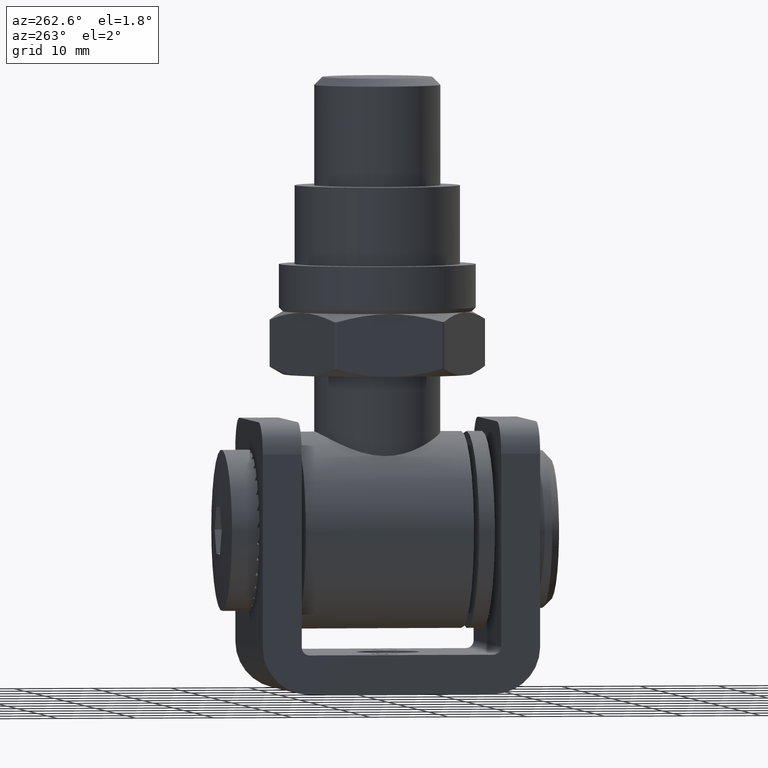
[diagram: clean part render]
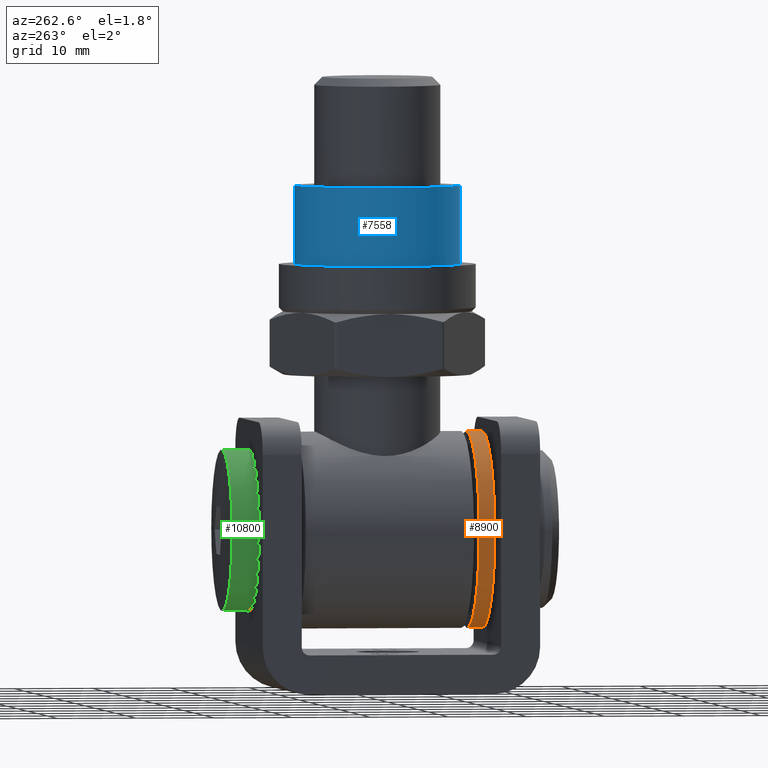
[diagram: same view with three faces highlighted in distinct colors, each labeled with its STEP entity id]
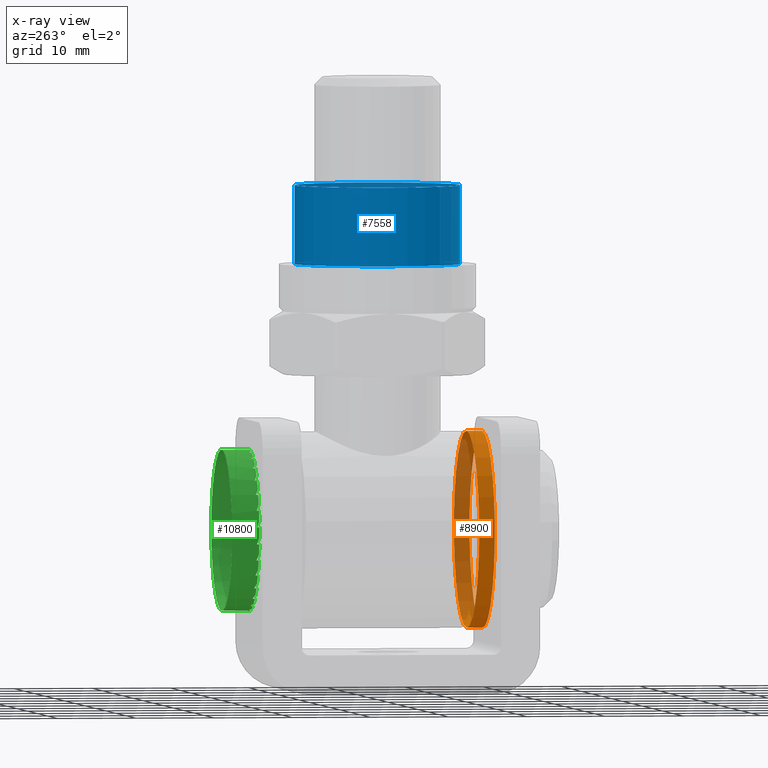
[diagram: x-ray of the same camera — body ghosted, the three highlighted faces saturated]
A machine part, auxiliary view with three faces highlighted in distinct colors.
The next image is the same camera in x-ray (body ghosted, the three faces saturated) — at least one of them is partly hidden behind the body in this view.
Their STEP definitions:

[orange] entity #8900 — the highlighted cylindrical surface (bore or boss wall) has radius 12.5 mm, axis along (-0, -1, -0).
#1687 = CARTESIAN_POINT ( 'NONE',  ( 0.000000000000000000, 1.000000000000000888, 0.000000000000000000 ) ) ;
#3743 = CARTESIAN_POINT ( 'NONE',  ( 0.000000000000000000, 1.000000000000000888, 12.50000000000000000 ) ) ;
#4303 = CYLINDRICAL_SURFACE ( 'NONE', #16565, 12.50000000000000000 ) ;
#5380 = CARTESIAN_POINT ( 'NONE',  ( 0.000000000000000000, -1.000000000000000888, 12.50000000000000000 ) ) ;
#5587 = DIRECTION ( 'NONE',  ( 0.000000000000000000, 1.000000000000000000, 0.000000000000000000 ) ) ;
#6680 = DIRECTION ( 'NONE',  ( 0.000000000000000000, 0.000000000000000000, -1.000000000000000000 ) ) ;
#6732 = CARTESIAN_POINT ( 'NONE',  ( 0.000000000000000000, 1.000000000000000888, 0.000000000000000000 ) ) ;
#6971 = AXIS2_PLACEMENT_3D ( 'NONE', #15817, #5587, #7127 ) ;
#7039 = EDGE_LOOP ( 'NONE', ( #18089 ) ) ;
#7127 = DIRECTION ( 'NONE',  ( 0.000000000000000000, 0.000000000000000000, 1.000000000000000000 ) ) ;
#7625 = ORIENTED_EDGE ( 'NONE', *, *, #12407, .F. ) ;
#8900 = ADVANCED_FACE ( 'NONE', ( #14132, #15470 ), #4303, .T. ) ;
#10935 = AXIS2_PLACEMENT_3D ( 'NONE', #6732, #13516, #15143 ) ;
#12407 = EDGE_CURVE ( 'NONE', #20949, #20949, #15343, .T. ) ;
#12630 = EDGE_CURVE ( 'NONE', #17788, #17788, #20374, .T. ) ;
#13516 = DIRECTION ( 'NONE',  ( 0.000000000000000000, 1.000000000000000000, 0.000000000000000000 ) ) ;
#14132 = FACE_OUTER_BOUND ( 'NONE', #16237, .T. ) ;
#15143 = DIRECTION ( 'NONE',  ( 0.000000000000000000, 0.000000000000000000, 1.000000000000000000 ) ) ;
#15343 = CIRCLE ( 'NONE', #10935, 12.50000000000000000 ) ;
#15470 = FACE_OUTER_BOUND ( 'NONE', #7039, .T. ) ;
#15817 = CARTESIAN_POINT ( 'NONE',  ( 0.000000000000000000, -1.000000000000000888, 0.000000000000000000 ) ) ;
#16237 = EDGE_LOOP ( 'NONE', ( #7625 ) ) ;
#16565 = AXIS2_PLACEMENT_3D ( 'NONE', #1687, #16893, #6680 ) ;
#16893 = DIRECTION ( 'NONE',  ( -0.000000000000000000, -1.000000000000000000, -0.000000000000000000 ) ) ;
#17788 = VERTEX_POINT ( 'NONE', #5380 ) ;
#18089 = ORIENTED_EDGE ( 'NONE', *, *, #12630, .T. ) ;
#20374 = CIRCLE ( 'NONE', #6971, 12.50000000000000000 ) ;
#20949 = VERTEX_POINT ( 'NONE', #3743 ) ;

[blue] entity #7558 — the highlighted cylindrical surface (bore or boss wall) has radius 10.5 mm, axis along (0, 0, 1).
#933 = EDGE_LOOP ( 'NONE', ( #7900 ) ) ;
#4815 = EDGE_CURVE ( 'NONE', #20162, #20162, #16387, .T. ) ;
#4912 = AXIS2_PLACEMENT_3D ( 'NONE', #8439, #20222, #15504 ) ;
#6128 = EDGE_LOOP ( 'NONE', ( #16639 ) ) ;
#7006 = AXIS2_PLACEMENT_3D ( 'NONE', #12778, #19242, #10637 ) ;
#7140 = CARTESIAN_POINT ( 'NONE',  ( 10.50000000000000000, 0.000000000000000000, 8.000000000000007105 ) ) ;
#7558 = ADVANCED_FACE ( 'NONE', ( #16016, #18933 ), #11470, .T. ) ;
#7900 = ORIENTED_EDGE ( 'NONE', *, *, #4815, .T. ) ;
#8439 = CARTESIAN_POINT ( 'NONE',  ( 0.000000000000000000, 0.000000000000000000, 8.000000000000007105 ) ) ;
#8627 = DIRECTION ( 'NONE',  ( -0.000000000000000000, -0.000000000000000000, 1.000000000000000000 ) ) ;
#10117 = CARTESIAN_POINT ( 'NONE',  ( 0.000000000000000000, 0.000000000000000000, -2.000000000000001776 ) ) ;
#10637 = DIRECTION ( 'NONE',  ( 1.000000000000000000, 0.000000000000000000, 0.000000000000000000 ) ) ;
#11470 = CYLINDRICAL_SURFACE ( 'NONE', #7006, 10.50000000000000000 ) ;
#12181 = VERTEX_POINT ( 'NONE', #7140 ) ;
#12778 = CARTESIAN_POINT ( 'NONE',  ( 0.000000000000000000, 0.000000000000000000, 8.000000000000007105 ) ) ;
#15356 = CIRCLE ( 'NONE', #4912, 10.50000000000000000 ) ;
#15504 = DIRECTION ( 'NONE',  ( 1.000000000000000000, 0.000000000000000000, 0.000000000000000000 ) ) ;
#16016 = FACE_OUTER_BOUND ( 'NONE', #6128, .T. ) ;
#16387 = CIRCLE ( 'NONE', #20202, 10.50000000000000000 ) ;
#16639 = ORIENTED_EDGE ( 'NONE', *, *, #17884, .F. ) ;
#17884 = EDGE_CURVE ( 'NONE', #12181, #12181, #15356, .T. ) ;
#18728 = CARTESIAN_POINT ( 'NONE',  ( 10.50000000000000000, 0.000000000000000000, -2.000000000000001776 ) ) ;
#18933 = FACE_OUTER_BOUND ( 'NONE', #933, .T. ) ;
#19242 = DIRECTION ( 'NONE',  ( -0.000000000000000000, -0.000000000000000000, 1.000000000000000000 ) ) ;
#20162 = VERTEX_POINT ( 'NONE', #18728 ) ;
#20202 = AXIS2_PLACEMENT_3D ( 'NONE', #10117, #8627, #21951 ) ;
#20222 = DIRECTION ( 'NONE',  ( -0.000000000000000000, -0.000000000000000000, 1.000000000000000000 ) ) ;
#21951 = DIRECTION ( 'NONE',  ( 1.000000000000000000, 0.000000000000000000, 0.000000000000000000 ) ) ;

[green] entity #10800 — the highlighted cylindrical surface (bore or boss wall) has radius 10.25 mm, axis along (-0, -1, -0).
#34 = VECTOR ( 'NONE', #15552, 1000.000000000000000 ) ;
#44 = VERTEX_POINT ( 'NONE', #7549 ) ;
#62 = EDGE_CURVE ( 'NONE', #7883, #11686, #8650, .T. ) ;
#64 = CARTESIAN_POINT ( 'NONE',  ( 1.878014372383247721E-15, 15.00000000000000000, 0.000000000000000000 ) ) ;
#113 = ORIENTED_EDGE ( 'NONE', *, *, #7371, .F. ) ;
#146 = DIRECTION ( 'NONE',  ( -1.252009581588831962E-16, -1.000000000000000000, -0.000000000000000000 ) ) ;
#237 = VERTEX_POINT ( 'NONE', #16247 ) ;
#239 = CARTESIAN_POINT ( 'NONE',  ( -2.520730527499571494, 15.00000000000000000, -9.935210999658318443 ) ) ;
#245 = CARTESIAN_POINT ( 'NONE',  ( 6.343816293589125799, 15.00000000000000000, 8.050993406604744607 ) ) ;
#270 = CARTESIAN_POINT ( 'NONE',  ( 4.531293035140212311, 15.00000000000000000, -9.194013456031584042 ) ) ;
#275 = DIRECTION ( 'NONE',  ( -1.252009581588831962E-16, -1.000000000000000000, -0.000000000000000000 ) ) ;
#280 = EDGE_CURVE ( 'NONE', #5739, #17250, #478, .T. ) ;
#338 = CIRCLE ( 'NONE', #3754, 10.24999999999999289 ) ;
#395 = CARTESIAN_POINT ( 'NONE',  ( 9.617296785912552437, 0.000000000000000000, 3.545434039955615457 ) ) ;
#402 = DIRECTION ( 'NONE',  ( 1.000000000000000000, -1.692413147294447202E-16, 0.000000000000000000 ) ) ;
#411 = EDGE_CURVE ( 'NONE', #7354, #7920, #12963, .T. ) ;
#422 = CIRCLE ( 'NONE', #16511, 10.24999999999999289 ) ;
#478 =( BOUNDED_CURVE ( )  B_SPLINE_CURVE ( 3, ( #21655, #21737, #7982, #19860 ),
 .UNSPECIFIED., .F., .T. ) 
 B_SPLINE_CURVE_WITH_KNOTS ( ( 4, 4 ),
 ( 1.531762024696450064, 1.609830628893343496 ),
 .UNSPECIFIED. ) 
 CURVE ( )  GEOMETRIC_REPRESENTATION_ITEM ( )  RATIONAL_B_SPLINE_CURVE ( ( 1.000000000000000000, 0.9994921722385874396, 0.9994921722385874396, 1.000000000000000000 ) ) 
 REPRESENTATION_ITEM ( '' )  );
#486 = CARTESIAN_POINT ( 'NONE',  ( 7.879084339000053561, 15.00000000000000000, 6.556106312356745569 ) ) ;
#489 = CARTESIAN_POINT ( 'NONE',  ( 1.738212446912596132, 0.000000000000000000, 10.10154035231251690 ) ) ;
#505 = CARTESIAN_POINT ( 'NONE',  ( 10.22789573322941870, 0.000000000000000000, -0.6727918475928512665 ) ) ;
#550 = CARTESIAN_POINT ( 'NONE',  ( 10.21038331219361339, 15.09997459571092548, 0.9390186412609659028 ) ) ;
#552 = DIRECTION ( 'NONE',  ( -1.252009581588831962E-16, -1.000000000000000000, -0.000000000000000000 ) ) ;
#662 = ORIENTED_EDGE ( 'NONE', *, *, #21092, .F. ) ;
#690 = CARTESIAN_POINT ( 'NONE',  ( 1.878014372383247721E-15, 15.00000000000000000, 0.000000000000000000 ) ) ;
#702 = LINE ( 'NONE', #16424, #5560 ) ;
#728 = CIRCLE ( 'NONE', #17994, 10.24999999999999289 ) ;
#748 = CARTESIAN_POINT ( 'NONE',  ( 10.14427296261531630, 0.000000000000000000, 1.468409363887265728 ) ) ;
#756 =( BOUNDED_CURVE ( )  B_SPLINE_CURVE ( 3, ( #18975, #7610, #9364, #8788 ),
 .UNSPECIFIED., .F., .T. ) 
 B_SPLINE_CURVE_WITH_KNOTS ( ( 4, 4 ),
 ( 1.531762024696450952, 1.609830628893342830 ),
 .UNSPECIFIED. ) 
 CURVE ( )  GEOMETRIC_REPRESENTATION_ITEM ( )  RATIONAL_B_SPLINE_CURVE ( ( 1.000000000000000000, 0.9994921722385874396, 0.9994921722385874396, 1.000000000000000000 ) ) 
 REPRESENTATION_ITEM ( '' )  );
#762 = ORIENTED_EDGE ( 'NONE', *, *, #10574, .F. ) ;
#809 = CARTESIAN_POINT ( 'NONE',  ( 0.1334010781042021532, 15.09997459571092371, 10.25260393963006855 ) ) ;
#830 = ORIENTED_EDGE ( 'NONE', *, *, #13032, .F. ) ;
#863 = EDGE_CURVE ( 'NONE', #15506, #5656, #1244, .T. ) ;
#872 =( BOUNDED_CURVE ( )  B_SPLINE_CURVE ( 3, ( #18173, #18255, #7984, #13025 ),
 .UNSPECIFIED., .F., .T. ) 
 B_SPLINE_CURVE_WITH_KNOTS ( ( 4, 4 ),
 ( 1.531762024696450064, 1.609830628893342608 ),
 .UNSPECIFIED. ) 
 CURVE ( )  GEOMETRIC_REPRESENTATION_ITEM ( )  RATIONAL_B_SPLINE_CURVE ( ( 1.000000000000000000, 0.9994921722385874396, 0.9994921722385874396, 1.000000000000000000 ) ) 
 REPRESENTATION_ITEM ( '' )  );
#906 = CARTESIAN_POINT ( 'NONE',  ( -8.669998590755245260, 15.30000000000000071, -5.467506235597888953 ) ) ;
#907 = CARTESIAN_POINT ( 'NONE',  ( -7.879084339000008264, 15.00000000000000000, -6.556106312356802412 ) ) ;
#928 = ORIENTED_EDGE ( 'NONE', *, *, #7263, .F. ) ;
#930 = CARTESIAN_POINT ( 'NONE',  ( 2.316217725939337712E-15, 18.49999999999998934, 0.000000000000000000 ) ) ;
#982 = CIRCLE ( 'NONE', #3592, 10.24999999999999289 ) ;
#993 = CARTESIAN_POINT ( 'NONE',  ( 9.069998590755188772, 15.29999999999999361, -4.774685912570473256 ) ) ;
#1010 = EDGE_CURVE ( 'NONE', #5713, #9310, #20841, .T. ) ;
#1045 = EDGE_CURVE ( 'NONE', #16010, #7354, #422, .T. ) ;
#1072 = DIRECTION ( 'NONE',  ( -1.252009581588831962E-16, -1.000000000000000000, -0.000000000000000000 ) ) ;
#1078 = EDGE_CURVE ( 'NONE', #9366, #7070, #3328, .T. ) ;
#1093 = CARTESIAN_POINT ( 'NONE',  ( 1.878014372383247721E-15, 15.00000000000000000, 0.000000000000000000 ) ) ;
#1094 = VECTOR ( 'NONE', #20483, 1000.000000000000000 ) ;
#1162 = VERTEX_POINT ( 'NONE', #20192 ) ;
#1237 = CARTESIAN_POINT ( 'NONE',  ( 4.531293035140397052, 15.00000000000000000, 9.194013456031488118 ) ) ;
#1244 = CIRCLE ( 'NONE', #8515, 10.24999999999999289 ) ;
#1250 = CARTESIAN_POINT ( 'NONE',  ( 9.792028985980648415, 15.20002540428906812, -3.041356889329535740 ) ) ;
#1257 = ORIENTED_EDGE ( 'NONE', *, *, #10934, .F. ) ;
#1279 = CARTESIAN_POINT ( 'NONE',  ( -7.879084338999962966, 15.30000000000000071, 6.556106312356861920 ) ) ;
#1287 = CARTESIAN_POINT ( 'NONE',  ( 10.22789573322943113, 15.00000000000000000, 0.6727918475926445430 ) ) ;
#1293 =( BOUNDED_CURVE ( )  B_SPLINE_CURVE ( 3, ( #19546, #6336, #21493, #6182 ),
 .UNSPECIFIED., .F., .T. ) 
 B_SPLINE_CURVE_WITH_KNOTS ( ( 4, 4 ),
 ( 1.531762024696450952, 1.609830628893342608 ),
 .UNSPECIFIED. ) 
 CURVE ( )  GEOMETRIC_REPRESENTATION_ITEM ( )  RATIONAL_B_SPLINE_CURVE ( ( 1.000000000000000000, 0.9994921722385874396, 0.9994921722385874396, 1.000000000000000000 ) ) 
 REPRESENTATION_ITEM ( '' )  );
#1372 = CARTESIAN_POINT ( 'NONE',  ( 0.4000000000000000222, 15.29999999999999361, -10.24219214816827872 ) ) ;
#1395 = EDGE_CURVE ( 'NONE', #9222, #19199, #20829, .T. ) ;
#1461 = VERTEX_POINT ( 'NONE', #9565 ) ;
#1566 = DIRECTION ( 'NONE',  ( -1.252009581588831962E-16, -1.000000000000000000, -0.000000000000000000 ) ) ;
#1569 = EDGE_CURVE ( 'NONE', #5204, #18991, #20857, .T. ) ;
#1628 = VERTEX_POINT ( 'NONE', #6957 ) ;
#1642 = CARTESIAN_POINT ( 'NONE',  ( -6.343816293589016553, 15.29999999999999361, 8.050993406604835201 ) ) ;
#1651 = VERTEX_POINT ( 'NONE', #7037 ) ;
#1759 = CARTESIAN_POINT ( 'NONE',  ( -6.343816293589064514, 15.00000000000000000, -8.050993406604781910 ) ) ;
#1783 = VECTOR ( 'NONE', #7973, 1000.000000000000000 ) ;
#1798 = EDGE_CURVE ( 'NONE', #20088, #13043, #21121, .T. ) ;
#1861 = LINE ( 'NONE', #15727, #18301 ) ;
#1925 = EDGE_CURVE ( 'NONE', #10980, #8938, #13147, .T. ) ;
#1963 = CARTESIAN_POINT ( 'NONE',  ( 6.134253132564571054, 15.09997459571092193, 8.216119637406649190 ) ) ;
#2006 = CARTESIAN_POINT ( 'NONE',  ( -10.18249489280864672, 15.20002540428907167, -1.204359227341744498 ) ) ;
#2010 = LINE ( 'NONE', #20516, #21645 ) ;
#2080 = VERTEX_POINT ( 'NONE', #8427 ) ;
#2087 = CARTESIAN_POINT ( 'NONE',  ( -5.696602698089055394, 15.00000000000000000, 8.521221608438811046 ) ) ;
#2115 = CARTESIAN_POINT ( 'NONE',  ( -10.14427296261530564, 15.00000000000000000, -1.468409363887333008 ) ) ;
#2144 = EDGE_CURVE ( 'NONE', #21815, #3536, #756, .T. ) ;
#2148 = CARTESIAN_POINT ( 'NONE',  ( 1.738212446912598352, 15.00000000000000000, 10.10154035231250802 ) ) ;
#2215 = ORIENTED_EDGE ( 'NONE', *, *, #18904, .F. ) ;
#2218 = CARTESIAN_POINT ( 'NONE',  ( -10.14427296261530920, 15.30000000000000071, -1.468409363887333452 ) ) ;
#2221 = VECTOR ( 'NONE', #2355, 1000.000000000000000 ) ;
#2271 = EDGE_CURVE ( 'NONE', #19199, #17446, #9004, .T. ) ;
#2281 = CARTESIAN_POINT ( 'NONE',  ( -3.800456669026250012, 15.29999999999999361, -9.519402770492156662 ) ) ;
#2287 = VERTEX_POINT ( 'NONE', #5590 ) ;
#2319 = ORIENTED_EDGE ( 'NONE', *, *, #1010, .F. ) ;
#2355 = DIRECTION ( 'NONE',  ( -1.252009581588831962E-16, -1.000000000000000000, -0.000000000000000000 ) ) ;
#2370 = EDGE_CURVE ( 'NONE', #13000, #18387, #5709, .T. ) ;
#2427 = CARTESIAN_POINT ( 'NONE',  ( -9.864510381412465279, 0.000000000000000000, 2.784588826919627280 ) ) ;
#2473 = CARTESIAN_POINT ( 'NONE',  ( 10.18249489280863251, 15.09997459571092548, -1.204359227341878835 ) ) ;
#2490 = EDGE_CURVE ( 'NONE', #237, #15506, #14979, .T. ) ;
#2492 = VERTEX_POINT ( 'NONE', #12745 ) ;
#2575 = CARTESIAN_POINT ( 'NONE',  ( 4.291977658137459350, 15.20002540428906990, -9.311960651366945285 ) ) ;
#2610 = CARTESIAN_POINT ( 'NONE',  ( 10.18249489280865738, 15.20002540428906812, 1.204359227341678107 ) ) ;
#2639 = CARTESIAN_POINT ( 'NONE',  ( 1.878014372383247721E-15, 15.00000000000000000, 0.000000000000000000 ) ) ;
#2643 = ORIENTED_EDGE ( 'NONE', *, *, #2144, .F. ) ;
#2656 = VERTEX_POINT ( 'NONE', #1287 ) ;
#2673 = DIRECTION ( 'NONE',  ( -1.252009581588831962E-16, -1.000000000000000000, -0.000000000000000000 ) ) ;
#2692 = ORIENTED_EDGE ( 'NONE', *, *, #17847, .F. ) ;
#2706 = ORIENTED_EDGE ( 'NONE', *, *, #12899, .F. ) ;
#2709 = AXIS2_PLACEMENT_3D ( 'NONE', #16545, #14740, #9595 ) ;
#2710 = DIRECTION ( 'NONE',  ( -1.252009581588831962E-16, -1.000000000000000000, -0.000000000000000000 ) ) ;
#2725 = CARTESIAN_POINT ( 'NONE',  ( -2.001150275890317687, 15.09997459571092371, 10.05629558852868577 ) ) ;
#2767 = CARTESIAN_POINT ( 'NONE',  ( 4.048241760244217780, 15.20002540428906990, 9.420478864748449865 ) ) ;
#2777 = CARTESIAN_POINT ( 'NONE',  ( 9.864510381412451068, 15.00000000000000000, -2.784588826919690785 ) ) ;
#2801 = EDGE_CURVE ( 'NONE', #8683, #1628, #2010, .T. ) ;
#2819 = DIRECTION ( 'NONE',  ( 1.000000000000000000, -1.692413147294447202E-16, 0.000000000000000000 ) ) ;
#2832 = CARTESIAN_POINT ( 'NONE',  ( 6.343816293588959709, 0.000000000000000000, -8.050993406604876057 ) ) ;
#2869 = DIRECTION ( 'NONE',  ( -1.252009581588831962E-16, -1.000000000000000000, -0.000000000000000000 ) ) ;
#2898 = CARTESIAN_POINT ( 'NONE',  ( 6.343816293588960598, 15.00000000000000000, -8.050993406604876057 ) ) ;
#2904 =( BOUNDED_CURVE ( )  B_SPLINE_CURVE ( 3, ( #4309, #16196, #16272, #7563 ),
 .UNSPECIFIED., .F., .F. ) 
 B_SPLINE_CURVE_WITH_KNOTS ( ( 4, 4 ),
 ( 1.531762024696450064, 1.609830628893343496 ),
 .UNSPECIFIED. ) 
 CURVE ( )  GEOMETRIC_REPRESENTATION_ITEM ( )  RATIONAL_B_SPLINE_CURVE ( ( 1.000000000000000000, 0.9994921722385874396, 0.9994921722385874396, 1.000000000000000000 ) ) 
 REPRESENTATION_ITEM ( '' )  );
#2991 = DIRECTION ( 'NONE',  ( 1.000000000000000000, -1.692413147294447202E-16, 0.000000000000000000 ) ) ;
#3010 = CARTESIAN_POINT ( 'NONE',  ( -10.21038331219360451, 15.09997459571092371, -0.9390186412610292965 ) ) ;
#3011 = CARTESIAN_POINT ( 'NONE',  ( -7.879084339000008264, 15.00000000000000000, -6.556106312356802412 ) ) ;
#3028 = EDGE_CURVE ( 'NONE', #18991, #13297, #13913, .T. ) ;
#3043 = VERTEX_POINT ( 'NONE', #2898 ) ;
#3048 = CARTESIAN_POINT ( 'NONE',  ( 10.14427296261529321, 15.00000000000000000, -1.468409363887471120 ) ) ;
#3065 = EDGE_LOOP ( 'NONE', ( #17062, #13719, #21343, #928, #6991, #16287, #2706, #8592, #14529, #19938, #21152, #762, #6413, #3948, #11035, #8890, #14247, #9726, #16402, #4346, #3453, #4883, #21447, #113, #14963, #7868, #13463, #8412, #3475, #5874, #16116, #9124, #14477, #4118, #4352, #10222, #21167, #15249, #3314, #21017, #20606, #10465, #3252, #18965, #1257, #21077, #19013, #13833, #2215, #11127, #21684, #3878, #13445, #5686, #17419, #662, #21967, #13215, #9505, #15048, #8551, #9989, #3145, #7668, #4765, #16838, #830, #2692, #4903, #2319, #16126, #17370, #2643, #16515, #13306, #14734, #19810, #19119, #14166, #5718, #12656, #9781, #19706, #14101, #11734, #13912, #17177, #5983, #8382, #4196 ) ) ;
#3076 = CARTESIAN_POINT ( 'NONE',  ( 9.709582585576374214, 15.09997459571092548, -3.295100818553124089 ) ) ;
#3123 = CARTESIAN_POINT ( 'NONE',  ( 3.800456669026125223, 15.00000000000000000, -9.519402770492213506 ) ) ;
#3145 = ORIENTED_EDGE ( 'NONE', *, *, #16064, .F. ) ;
#3212 = EDGE_CURVE ( 'NONE', #4587, #2080, #16589, .T. ) ;
#3252 = ORIENTED_EDGE ( 'NONE', *, *, #6319, .F. ) ;
#3269 = CARTESIAN_POINT ( 'NONE',  ( -7.343779853912863587, 15.00000000000000000, 7.150622172738766658 ) ) ;
#3314 = ORIENTED_EDGE ( 'NONE', *, *, #19572, .F. ) ;
#3328 = LINE ( 'NONE', #16894, #17934 ) ;
#3366 = CARTESIAN_POINT ( 'NONE',  ( -9.069998590755213641, 15.00000000000000000, 4.774685912570407531 ) ) ;
#3381 = CARTESIAN_POINT ( 'NONE',  ( -7.343779853912863587, 15.00000000000000000, 7.150622172738766658 ) ) ;
#3384 = CARTESIAN_POINT ( 'NONE',  ( 1.878014372383247721E-15, 15.00000000000000000, 0.000000000000000000 ) ) ;
#3439 = VECTOR ( 'NONE', #4528, 1000.000000000000000 ) ;
#3444 = CARTESIAN_POINT ( 'NONE',  ( 2.520730527499440932, 0.000000000000000000, -9.935210999658353970 ) ) ;
#3453 = ORIENTED_EDGE ( 'NONE', *, *, #12933, .F. ) ;
#3457 = LINE ( 'NONE', #10250, #1094 ) ;
#3475 = ORIENTED_EDGE ( 'NONE', *, *, #1045, .F. ) ;
#3498 = EDGE_CURVE ( 'NONE', #17905, #11883, #5729, .T. ) ;
#3536 = VERTEX_POINT ( 'NONE', #993 ) ;
#3546 = EDGE_CURVE ( 'NONE', #9310, #21717, #702, .T. ) ;
#3564 = CARTESIAN_POINT ( 'NONE',  ( 6.343816293588962374, 15.29999999999999361, -8.050993406604879610 ) ) ;
#3592 = AXIS2_PLACEMENT_3D ( 'NONE', #21013, #15986, #17697 ) ;
#3593 = DIRECTION ( 'NONE',  ( -1.252009581588831962E-16, -1.000000000000000000, -0.000000000000000000 ) ) ;
#3611 = DIRECTION ( 'NONE',  ( 1.000000000000000000, -1.692413147294447202E-16, 0.000000000000000000 ) ) ;
#3689 = CARTESIAN_POINT ( 'NONE',  ( 3.800456669026315737, 0.000000000000000000, 9.519402770492137122 ) ) ;
#3701 = CARTESIAN_POINT ( 'NONE',  ( -4.291977658137514418, 15.20002540428906990, 9.311960651366918640 ) ) ;
#3744 = DIRECTION ( 'NONE',  ( 1.000000000000000000, -1.692413147294447202E-16, 0.000000000000000000 ) ) ;
#3754 = AXIS2_PLACEMENT_3D ( 'NONE', #20854, #15693, #3744 ) ;
#3760 = CARTESIAN_POINT ( 'NONE',  ( 1.878014372383247721E-15, 15.00000000000000000, 0.000000000000000000 ) ) ;
#3796 = CARTESIAN_POINT ( 'NONE',  ( 1.738212446912600573, 15.29999999999999361, 10.10154035231251513 ) ) ;
#3820 = CARTESIAN_POINT ( 'NONE',  ( 0.4000000000000000222, 15.29999999999999361, -10.24219214816827872 ) ) ;
#3858 =( BOUNDED_CURVE ( )  B_SPLINE_CURVE ( 3, ( #1237, #8177, #2767, #7893 ),
 .UNSPECIFIED., .F., .T. ) 
 B_SPLINE_CURVE_WITH_KNOTS ( ( 4, 4 ),
 ( 1.531762024696450952, 1.609830628893342608 ),
 .UNSPECIFIED. ) 
 CURVE ( )  GEOMETRIC_REPRESENTATION_ITEM ( )  RATIONAL_B_SPLINE_CURVE ( ( 1.000000000000000000, 0.9994921722385874396, 0.9994921722385874396, 1.000000000000000000 ) ) 
 REPRESENTATION_ITEM ( '' )  );
#3859 = CARTESIAN_POINT ( 'NONE',  ( -7.879084338999956749, 15.00000000000000000, 6.556106312356858368 ) ) ;
#3878 = ORIENTED_EDGE ( 'NONE', *, *, #4946, .F. ) ;
#3884 = EDGE_CURVE ( 'NONE', #13900, #1162, #13630, .T. ) ;
#3948 = ORIENTED_EDGE ( 'NONE', *, *, #1798, .F. ) ;
#3961 = EDGE_CURVE ( 'NONE', #3043, #7065, #19831, .T. ) ;
#3992 = VERTEX_POINT ( 'NONE', #19223 ) ;
#4043 = EDGE_CURVE ( 'NONE', #17407, #7073, #21163, .T. ) ;
#4055 = VERTEX_POINT ( 'NONE', #8538 ) ;
#4112 = CARTESIAN_POINT ( 'NONE',  ( -8.669998590755202628, 15.00000000000000000, 5.467506235597952902 ) ) ;
#4115 = VECTOR ( 'NONE', #5715, 1000.000000000000000 ) ;
#4118 = ORIENTED_EDGE ( 'NONE', *, *, #7412, .F. ) ;
#4121 =( BOUNDED_CURVE ( )  B_SPLINE_CURVE ( 3, ( #7250, #18869, #20751, #3796 ),
 .UNSPECIFIED., .F., .T. ) 
 B_SPLINE_CURVE_WITH_KNOTS ( ( 4, 4 ),
 ( 1.531762024696450064, 1.609830628893342608 ),
 .UNSPECIFIED. ) 
 CURVE ( )  GEOMETRIC_REPRESENTATION_ITEM ( )  RATIONAL_B_SPLINE_CURVE ( ( 1.000000000000000000, 0.9994921722385874396, 0.9994921722385874396, 1.000000000000000000 ) ) 
 REPRESENTATION_ITEM ( '' )  );
#4153 = CARTESIAN_POINT ( 'NONE',  ( 1.878014372383247721E-15, 15.00000000000000000, 0.000000000000000000 ) ) ;
#4196 = ORIENTED_EDGE ( 'NONE', *, *, #21961, .F. ) ;
#4224 = CARTESIAN_POINT ( 'NONE',  ( -9.792028985980689271, 15.09997459571092371, -3.041356889329405622 ) ) ;
#4309 = CARTESIAN_POINT ( 'NONE',  ( -10.14427296261528788, 15.00000000000000000, 1.468409363887404062 ) ) ;
#4320 = DIRECTION ( 'NONE',  ( -1.252009581588831962E-16, -1.000000000000000000, -0.000000000000000000 ) ) ;
#4346 = ORIENTED_EDGE ( 'NONE', *, *, #3498, .F. ) ;
#4352 = ORIENTED_EDGE ( 'NONE', *, *, #21436, .F. ) ;
#4410 = DIRECTION ( 'NONE',  ( -1.252009581588831962E-16, -1.000000000000000000, -0.000000000000000000 ) ) ;
#4413 = DIRECTION ( 'NONE',  ( 1.000000000000000000, -1.692413147294447202E-16, 0.000000000000000000 ) ) ;
#4431 = LINE ( 'NONE', #20207, #20621 ) ;
#4470 = EDGE_CURVE ( 'NONE', #4055, #20513, #6026, .T. ) ;
#4489 = DIRECTION ( 'NONE',  ( -1.252009581588831962E-16, -1.000000000000000000, -0.000000000000000000 ) ) ;
#4500 = DIRECTION ( 'NONE',  ( 1.000000000000000000, -1.692413147294447202E-16, 0.000000000000000000 ) ) ;
#4520 = CARTESIAN_POINT ( 'NONE',  ( 1.878014372383247721E-15, 15.00000000000000000, 0.000000000000000000 ) ) ;
#4528 = DIRECTION ( 'NONE',  ( -1.252009581588831962E-16, -1.000000000000000000, -0.000000000000000000 ) ) ;
#4542 = VERTEX_POINT ( 'NONE', #8115 ) ;
#4556 = CARTESIAN_POINT ( 'NONE',  ( 9.864510381412452844, 15.29999999999999361, -2.784588826919692561 ) ) ;
#4585 = DIRECTION ( 'NONE',  ( -1.252009581588831962E-16, -1.000000000000000000, -0.000000000000000000 ) ) ;
#4587 = VERTEX_POINT ( 'NONE', #8194 ) ;
#4597 = CARTESIAN_POINT ( 'NONE',  ( -8.669998590755245260, 15.00000000000000000, -5.467506235597889841 ) ) ;
#4603 = CARTESIAN_POINT ( 'NONE',  ( -3.800456669026178957, 15.00000000000000000, 9.519402770492174426 ) ) ;
#4652 = EDGE_CURVE ( 'NONE', #13139, #10163, #19287, .T. ) ;
#4684 = LINE ( 'NONE', #8491, #20600 ) ;
#4707 = CARTESIAN_POINT ( 'NONE',  ( 1.878014372383247721E-15, 15.00000000000000000, 0.000000000000000000 ) ) ;
#4715 = CARTESIAN_POINT ( 'NONE',  ( -7.708432309686028105, 15.09997459571092726, -6.761194769975637620 ) ) ;
#4765 = ORIENTED_EDGE ( 'NONE', *, *, #7232, .F. ) ;
#4847 = AXIS2_PLACEMENT_3D ( 'NONE', #3384, #18660, #20261 ) ;
#4850 = AXIS2_PLACEMENT_3D ( 'NONE', #5000, #15080, #18366 ) ;
#4858 = DIRECTION ( 'NONE',  ( 1.000000000000000000, -1.692413147294447202E-16, 0.000000000000000000 ) ) ;
#4865 = CARTESIAN_POINT ( 'NONE',  ( 3.800456669026321066, 15.29999999999999361, 9.519402770492137122 ) ) ;
#4883 = ORIENTED_EDGE ( 'NONE', *, *, #11004, .F. ) ;
#4903 = ORIENTED_EDGE ( 'NONE', *, *, #3546, .F. ) ;
#4946 = EDGE_CURVE ( 'NONE', #13104, #8683, #18845, .T. ) ;
#4964 = LINE ( 'NONE', #748, #16396 ) ;
#4984 = EDGE_CURVE ( 'NONE', #1651, #7778, #982, .T. ) ;
#5000 = CARTESIAN_POINT ( 'NONE',  ( 1.878014372383247721E-15, 15.00000000000000000, 0.000000000000000000 ) ) ;
#5008 = CARTESIAN_POINT ( 'NONE',  ( -6.134253132564513322, 15.09997459571092371, -8.216119637406691822 ) ) ;
#5011 = VECTOR ( 'NONE', #21982, 1000.000000000000000 ) ;
#5044 = CARTESIAN_POINT ( 'NONE',  ( 1.878014372383247721E-15, 15.00000000000000000, 0.000000000000000000 ) ) ;
#5055 = AXIS2_PLACEMENT_3D ( 'NONE', #930, #17835, #7497 ) ;
#5080 = CIRCLE ( 'NONE', #18872, 10.24999999999999289 ) ;
#5092 = CARTESIAN_POINT ( 'NONE',  ( 4.531293035140211423, 0.000000000000000000, -9.194013456031582265 ) ) ;
#5204 = VERTEX_POINT ( 'NONE', #270 ) ;
#5402 = CARTESIAN_POINT ( 'NONE',  ( -4.531293035140262049, 15.29999999999999361, 9.194013456031539633 ) ) ;
#5451 = EDGE_CURVE ( 'NONE', #1628, #19227, #8899, .T. ) ;
#5518 = CARTESIAN_POINT ( 'NONE',  ( 8.945716005712204932, 15.09997459571092548, 5.010773247284488363 ) ) ;
#5559 = VERTEX_POINT ( 'NONE', #6617 ) ;
#5560 = VECTOR ( 'NONE', #1072, 1000.000000000000000 ) ;
#5561 = LINE ( 'NONE', #14439, #11091 ) ;
#5586 = DIRECTION ( 'NONE',  ( -1.252009581588831962E-16, -1.000000000000000000, -0.000000000000000000 ) ) ;
#5590 = CARTESIAN_POINT ( 'NONE',  ( 7.879084339000053561, 15.00000000000000000, 6.556106312356745569 ) ) ;
#5612 = CARTESIAN_POINT ( 'NONE',  ( -6.343816293589017441, 0.000000000000000000, 8.050993406604829872 ) ) ;
#5656 = VERTEX_POINT ( 'NONE', #13972 ) ;
#5661 = VERTEX_POINT ( 'NONE', #20486 ) ;
#5663 = DIRECTION ( 'NONE',  ( -1.252009581588831962E-16, -1.000000000000000000, -0.000000000000000000 ) ) ;
#5686 = ORIENTED_EDGE ( 'NONE', *, *, #11994, .F. ) ;
#5696 = AXIS2_PLACEMENT_3D ( 'NONE', #6558, #13382, #4858 ) ;
#5709 = LINE ( 'NONE', #395, #16087 ) ;
#5713 = VERTEX_POINT ( 'NONE', #10694 ) ;
#5715 = DIRECTION ( 'NONE',  ( -1.252009581588831962E-16, -1.000000000000000000, -0.000000000000000000 ) ) ;
#5718 = ORIENTED_EDGE ( 'NONE', *, *, #1569, .F. ) ;
#5729 = CIRCLE ( 'NONE', #18098, 10.24999999999999289 ) ;
#5739 = VERTEX_POINT ( 'NONE', #12307 ) ;
#5862 = EDGE_CURVE ( 'NONE', #20513, #13394, #15802, .T. ) ;
#5874 = ORIENTED_EDGE ( 'NONE', *, *, #13528, .F. ) ;
#5885 = AXIS2_PLACEMENT_3D ( 'NONE', #15558, #6992, #10414 ) ;
#5983 = ORIENTED_EDGE ( 'NONE', *, *, #8152, .F. ) ;
#5985 = VERTEX_POINT ( 'NONE', #14448 ) ;
#6002 = CARTESIAN_POINT ( 'NONE',  ( -9.069998590755243839, 15.00000000000000000, -4.774685912570337365 ) ) ;
#6006 = VERTEX_POINT ( 'NONE', #11531 ) ;
#6026 =( BOUNDED_CURVE ( )  B_SPLINE_CURVE ( 3, ( #14030, #5518, #13798, #18929 ),
 .UNSPECIFIED., .F., .T. ) 
 B_SPLINE_CURVE_WITH_KNOTS ( ( 4, 4 ),
 ( 1.531762024696450952, 1.609830628893342608 ),
 .UNSPECIFIED. ) 
 CURVE ( )  GEOMETRIC_REPRESENTATION_ITEM ( )  RATIONAL_B_SPLINE_CURVE ( ( 1.000000000000000000, 0.9994921722385874396, 0.9994921722385874396, 1.000000000000000000 ) ) 
 REPRESENTATION_ITEM ( '' )  );
#6131 = CARTESIAN_POINT ( 'NONE',  ( -8.669998590755245260, 15.30000000000000071, -5.467506235597888953 ) ) ;
#6146 = DIRECTION ( 'NONE',  ( 1.000000000000000000, -1.692413147294447202E-16, 0.000000000000000000 ) ) ;
#6182 = CARTESIAN_POINT ( 'NONE',  ( -1.738212446912528186, 15.29999999999999361, -10.10154035231253289 ) ) ;
#6183 = DIRECTION ( 'NONE',  ( 1.000000000000000000, -1.252009581588831962E-16, 0.000000000000000000 ) ) ;
#6199 = AXIS2_PLACEMENT_3D ( 'NONE', #14493, #7735, #11202 ) ;
#6277 = EDGE_CURVE ( 'NONE', #8938, #21815, #7536, .T. ) ;
#6319 = EDGE_CURVE ( 'NONE', #1461, #8012, #13236, .T. ) ;
#6336 = CARTESIAN_POINT ( 'NONE',  ( -2.262122164856232409, 15.09997459571092726, -10.00082430111755905 ) ) ;
#6337 = CARTESIAN_POINT ( 'NONE',  ( 0.000000000000000000, 0.000000000000000000, 0.000000000000000000 ) ) ;
#6413 = ORIENTED_EDGE ( 'NONE', *, *, #15551, .F. ) ;
#6429 = CARTESIAN_POINT ( 'NONE',  ( -3.800456669026178957, 15.00000000000000000, 9.519402770492174426 ) ) ;
#6485 = DIRECTION ( 'NONE',  ( -1.252009581588831962E-16, -1.000000000000000000, -0.000000000000000000 ) ) ;
#6558 = CARTESIAN_POINT ( 'NONE',  ( 1.878014372383247721E-15, 15.00000000000000000, 0.000000000000000000 ) ) ;
#6592 = EDGE_CURVE ( 'NONE', #2287, #5661, #10084, .T. ) ;
#6597 = EDGE_CURVE ( 'NONE', #13152, #17407, #18955, .T. ) ;
#6617 = CARTESIAN_POINT ( 'NONE',  ( 9.069998590755188772, 15.00000000000000000, -4.774685912570471480 ) ) ;
#6624 = LINE ( 'NONE', #18808, #8757 ) ;
#6656 = CARTESIAN_POINT ( 'NONE',  ( -7.529906821124413341, 15.09997459571092726, 6.959467411788160973 ) ) ;
#6657 = VERTEX_POINT ( 'NONE', #14040 ) ;
#6661 = CARTESIAN_POINT ( 'NONE',  ( 5.696602698089173522, 15.29999999999999361, 8.521221608438729334 ) ) ;
#6789 = CARTESIAN_POINT ( 'NONE',  ( -9.617296785912525792, 15.00000000000000000, -3.545434039955681182 ) ) ;
#6957 = CARTESIAN_POINT ( 'NONE',  ( 5.696602698089175298, 15.00000000000000000, 8.521221608438732886 ) ) ;
#6963 = DIRECTION ( 'NONE',  ( -1.252009581588831962E-16, -1.000000000000000000, -0.000000000000000000 ) ) ;
#6968 = CARTESIAN_POINT ( 'NONE',  ( 2.001150275890255070, 15.09997459571092193, -10.05629558852869998 ) ) ;
#6991 = ORIENTED_EDGE ( 'NONE', *, *, #16334, .F. ) ;
#6992 = DIRECTION ( 'NONE',  ( -1.252009581588831962E-16, -1.000000000000000000, -0.000000000000000000 ) ) ;
#7008 = EDGE_CURVE ( 'NONE', #8309, #1461, #11206, .T. ) ;
#7037 = CARTESIAN_POINT ( 'NONE',  ( -2.520730527499501328, 15.00000000000000000, 9.935210999658332653 ) ) ;
#7065 = VERTEX_POINT ( 'NONE', #14878 ) ;
#7070 = VERTEX_POINT ( 'NONE', #18252 ) ;
#7073 = VERTEX_POINT ( 'NONE', #18457 ) ;
#7120 = LINE ( 'NONE', #12370, #15894 ) ;
#7178 = VERTEX_POINT ( 'NONE', #1642 ) ;
#7196 = CARTESIAN_POINT ( 'NONE',  ( -9.864510381412459950, 15.30000000000000071, 2.784588826919628612 ) ) ;
#7206 = EDGE_CURVE ( 'NONE', #11036, #15896, #8034, .T. ) ;
#7211 = VERTEX_POINT ( 'NONE', #10189 ) ;
#7220 = LINE ( 'NONE', #18394, #19182 ) ;
#7232 = EDGE_CURVE ( 'NONE', #2080, #2656, #12818, .T. ) ;
#7237 = VECTOR ( 'NONE', #19543, 1000.000000000000000 ) ;
#7250 = CARTESIAN_POINT ( 'NONE',  ( 2.520730527499642104, 15.00000000000000000, 9.935210999658295350 ) ) ;
#7263 = EDGE_CURVE ( 'NONE', #15272, #19662, #14716, .T. ) ;
#7277 = CARTESIAN_POINT ( 'NONE',  ( 0.1334010781041964633, 15.20002540428906990, -10.25260393963006855 ) ) ;
#7346 = CARTESIAN_POINT ( 'NONE',  ( 2.262122164856103179, 15.20002540428906990, -10.00082430111759102 ) ) ;
#7354 = VERTEX_POINT ( 'NONE', #4112 ) ;
#7370 = CARTESIAN_POINT ( 'NONE',  ( 9.792028985980710587, 15.09997459571092193, 3.041356889329336788 ) ) ;
#7371 = EDGE_CURVE ( 'NONE', #17250, #10294, #21043, .T. ) ;
#7412 = EDGE_CURVE ( 'NONE', #20129, #7178, #15966, .T. ) ;
#7421 = CARTESIAN_POINT ( 'NONE',  ( 2.520730527499442264, 15.29999999999999361, -9.935210999658359299 ) ) ;
#7464 = CARTESIAN_POINT ( 'NONE',  ( -9.864510381412481266, 15.00000000000000000, -2.784588826919557114 ) ) ;
#7497 = DIRECTION ( 'NONE',  ( 1.000000000000000000, 0.000000000000000000, 0.000000000000000000 ) ) ;
#7517 = DIRECTION ( 'NONE',  ( -1.252009581588831962E-16, -1.000000000000000000, -0.000000000000000000 ) ) ;
#7536 = CIRCLE ( 'NONE', #8709, 10.24999999999999289 ) ;
#7549 = CARTESIAN_POINT ( 'NONE',  ( -7.343779853912921318, 15.00000000000000000, -7.150622172738717808 ) ) ;
#7563 = CARTESIAN_POINT ( 'NONE',  ( -10.22789573322941692, 15.30000000000000071, 0.6727918475927862074 ) ) ;
#7610 = CARTESIAN_POINT ( 'NONE',  ( 8.812314927607902248, 15.09997459571092548, -5.241830692345601506 ) ) ;
#7637 = VERTEX_POINT ( 'NONE', #18815 ) ;
#7668 = ORIENTED_EDGE ( 'NONE', *, *, #12707, .F. ) ;
#7672 = FACE_OUTER_BOUND ( 'NONE', #17421, .T. ) ;
#7735 = DIRECTION ( 'NONE',  ( -1.252009581588831962E-16, -1.000000000000000000, -0.000000000000000000 ) ) ;
#7744 = DIRECTION ( 'NONE',  ( -1.252009581588831962E-16, -1.000000000000000000, -0.000000000000000000 ) ) ;
#7756 = DIRECTION ( 'NONE',  ( -1.252009581588831962E-16, -1.000000000000000000, -0.000000000000000000 ) ) ;
#7778 = VERTEX_POINT ( 'NONE', #4603 ) ;
#7868 = ORIENTED_EDGE ( 'NONE', *, *, #11731, .F. ) ;
#7883 = VERTEX_POINT ( 'NONE', #10408 ) ;
#7893 = CARTESIAN_POINT ( 'NONE',  ( 3.800456669026321066, 15.29999999999999361, 9.519402770492137122 ) ) ;
#7918 = CARTESIAN_POINT ( 'NONE',  ( 3.800456669026317513, 15.00000000000000000, 9.519402770492130017 ) ) ;
#7920 = VERTEX_POINT ( 'NONE', #17349 ) ;
#7935 = LINE ( 'NONE', #14214, #10843 ) ;
#7969 = AXIS2_PLACEMENT_3D ( 'NONE', #9607, #19501, #6146 ) ;
#7973 = DIRECTION ( 'NONE',  ( -1.252009581588831962E-16, -1.000000000000000000, -0.000000000000000000 ) ) ;
#7982 = CARTESIAN_POINT ( 'NONE',  ( -9.792028985980664402, 15.20002540428907345, 3.041356889329471347 ) ) ;
#7984 = CARTESIAN_POINT ( 'NONE',  ( 7.708432309685942840, 15.20002540428906990, -6.761194769975740648 ) ) ;
#7994 = EDGE_CURVE ( 'NONE', #3992, #3992, #8122, .T. ) ;
#8012 = VERTEX_POINT ( 'NONE', #9337 ) ;
#8021 = CARTESIAN_POINT ( 'NONE',  ( 1.878014372383247721E-15, 15.00000000000000000, 0.000000000000000000 ) ) ;
#8034 = CIRCLE ( 'NONE', #15420, 10.24999999999999289 ) ;
#8115 = CARTESIAN_POINT ( 'NONE',  ( 9.864510381412497253, 15.00000000000000000, 2.784588826919486948 ) ) ;
#8122 = CIRCLE ( 'NONE', #5055, 10.25000000000000000 ) ;
#8152 = EDGE_CURVE ( 'NONE', #11686, #9366, #8459, .T. ) ;
#8177 = CARTESIAN_POINT ( 'NONE',  ( 4.291977658137644092, 15.09997459571092548, 9.311960651366860020 ) ) ;
#8194 = CARTESIAN_POINT ( 'NONE',  ( 10.22789573322942580, 15.29999999999999361, -0.6727918475928538200 ) ) ;
#8273 = EDGE_CURVE ( 'NONE', #7778, #7211, #11437, .T. ) ;
#8309 = VERTEX_POINT ( 'NONE', #2148 ) ;
#8313 = CARTESIAN_POINT ( 'NONE',  ( -10.22789573322942225, 0.000000000000000000, 0.6727918475927844311 ) ) ;
#8334 = CARTESIAN_POINT ( 'NONE',  ( -1.738212446912455578, 15.00000000000000000, 10.10154035231253644 ) ) ;
#8372 = EDGE_CURVE ( 'NONE', #8012, #13139, #7220, .T. ) ;
#8382 = ORIENTED_EDGE ( 'NONE', *, *, #62, .F. ) ;
#8398 = CIRCLE ( 'NONE', #11834, 10.24999999999999289 ) ;
#8408 = VERTEX_POINT ( 'NONE', #1279 ) ;
#8412 = ORIENTED_EDGE ( 'NONE', *, *, #411, .F. ) ;
#8427 = CARTESIAN_POINT ( 'NONE',  ( 10.22789573322942580, 15.00000000000000000, -0.6727918475928538200 ) ) ;
#8441 = VERTEX_POINT ( 'NONE', #13250 ) ;
#8459 =( BOUNDED_CURVE ( )  B_SPLINE_CURVE ( 3, ( #17284, #10570, #7277, #3820 ),
 .UNSPECIFIED., .F., .T. ) 
 B_SPLINE_CURVE_WITH_KNOTS ( ( 4, 4 ),
 ( 1.531762024696450064, 1.609830628893342608 ),
 .UNSPECIFIED. ) 
 CURVE ( )  GEOMETRIC_REPRESENTATION_ITEM ( )  RATIONAL_B_SPLINE_CURVE ( ( 1.000000000000000000, 0.9994921722385874396, 0.9994921722385874396, 1.000000000000000000 ) ) 
 REPRESENTATION_ITEM ( '' )  );
#8476 = CARTESIAN_POINT ( 'NONE',  ( -8.812314927607932447, 15.09997459571092371, 5.241830692345544662 ) ) ;
#8489 = DIRECTION ( 'NONE',  ( -1.252009581588831962E-16, -1.000000000000000000, -0.000000000000000000 ) ) ;
#8491 = CARTESIAN_POINT ( 'NONE',  ( -3.800456669026251788, 0.000000000000000000, -9.519402770492160215 ) ) ;
#8497 = CIRCLE ( 'NONE', #19999, 10.24999999999999289 ) ;
#8515 = AXIS2_PLACEMENT_3D ( 'NONE', #12857, #4410, #21107 ) ;
#8538 = CARTESIAN_POINT ( 'NONE',  ( 9.069998590755286472, 15.00000000000000000, 4.774685912570277857 ) ) ;
#8551 = ORIENTED_EDGE ( 'NONE', *, *, #16833, .F. ) ;
#8592 = ORIENTED_EDGE ( 'NONE', *, *, #12736, .F. ) ;
#8630 = CARTESIAN_POINT ( 'NONE',  ( 1.738212446912600573, 15.29999999999999361, 10.10154035231251513 ) ) ;
#8650 = CIRCLE ( 'NONE', #17775, 10.24999999999999289 ) ;
#8683 = VERTEX_POINT ( 'NONE', #12468 ) ;
#8709 = AXIS2_PLACEMENT_3D ( 'NONE', #16228, #7744, #4413 ) ;
#8757 = VECTOR ( 'NONE', #6963, 1000.000000000000000 ) ;
#8781 = CARTESIAN_POINT ( 'NONE',  ( -9.864510381412456397, 15.00000000000000000, 2.784588826919626836 ) ) ;
#8788 = CARTESIAN_POINT ( 'NONE',  ( 9.069998590755188772, 15.29999999999999361, -4.774685912570473256 ) ) ;
#8806 = CARTESIAN_POINT ( 'NONE',  ( 9.069998590755185219, 0.000000000000000000, -4.774685912570469704 ) ) ;
#8890 = ORIENTED_EDGE ( 'NONE', *, *, #9783, .F. ) ;
#8893 = CARTESIAN_POINT ( 'NONE',  ( 1.878014372383247721E-15, 15.00000000000000000, 0.000000000000000000 ) ) ;
#8899 = CIRCLE ( 'NONE', #16106, 10.24999999999999289 ) ;
#8902 = CARTESIAN_POINT ( 'NONE',  ( 7.343779853912971944, 15.29999999999999361, 7.150622172738666293 ) ) ;
#8938 = VERTEX_POINT ( 'NONE', #17047 ) ;
#8969 = CARTESIAN_POINT ( 'NONE',  ( 10.22789573322943113, 15.00000000000000000, 0.6727918475926445430 ) ) ;
#8992 = EDGE_CURVE ( 'NONE', #7070, #13152, #338, .T. ) ;
#9004 =( BOUNDED_CURVE ( )  B_SPLINE_CURVE ( 3, ( #3011, #4715, #16609, #13240 ),
 .UNSPECIFIED., .F., .F. ) 
 B_SPLINE_CURVE_WITH_KNOTS ( ( 4, 4 ),
 ( 1.531762024696450952, 1.609830628893343496 ),
 .UNSPECIFIED. ) 
 CURVE ( )  GEOMETRIC_REPRESENTATION_ITEM ( )  RATIONAL_B_SPLINE_CURVE ( ( 1.000000000000000000, 0.9994921722385874396, 0.9994921722385874396, 1.000000000000000000 ) ) 
 REPRESENTATION_ITEM ( '' )  );
#9027 = CARTESIAN_POINT ( 'NONE',  ( 5.696602698088993222, 15.00000000000000000, -8.521221608438843020 ) ) ;
#9108 = CARTESIAN_POINT ( 'NONE',  ( 1.878014372383247721E-15, 15.00000000000000000, 0.000000000000000000 ) ) ;
#9118 =( BOUNDED_CURVE ( )  B_SPLINE_CURVE ( 3, ( #11005, #3010, #2006, #2218 ),
 .UNSPECIFIED., .F., .F. ) 
 B_SPLINE_CURVE_WITH_KNOTS ( ( 4, 4 ),
 ( 1.531762024696450064, 1.609830628893342608 ),
 .UNSPECIFIED. ) 
 CURVE ( )  GEOMETRIC_REPRESENTATION_ITEM ( )  RATIONAL_B_SPLINE_CURVE ( ( 1.000000000000000000, 0.9994921722385874396, 0.9994921722385874396, 1.000000000000000000 ) ) 
 REPRESENTATION_ITEM ( '' )  );
#9124 = ORIENTED_EDGE ( 'NONE', *, *, #16719, .F. ) ;
#9222 = VERTEX_POINT ( 'NONE', #4597 ) ;
#9245 = CARTESIAN_POINT ( 'NONE',  ( 5.918405654055927556, 15.09997459571092193, -8.372942010105902000 ) ) ;
#9307 = CARTESIAN_POINT ( 'NONE',  ( 6.134253132564399635, 15.20002540428906812, -8.216119637406775311 ) ) ;
#9310 = VERTEX_POINT ( 'NONE', #13424 ) ;
#9337 = CARTESIAN_POINT ( 'NONE',  ( -0.3999999999999961919, 15.29999999999999361, 10.24219214816827872 ) ) ;
#9364 = CARTESIAN_POINT ( 'NONE',  ( 8.945716005712100127, 15.20002540428906990, -5.010773247284670440 ) ) ;
#9366 = VERTEX_POINT ( 'NONE', #1372 ) ;
#9396 =( BOUNDED_CURVE ( )  B_SPLINE_CURVE ( 3, ( #11154, #2725, #16317, #18031 ),
 .UNSPECIFIED., .F., .F. ) 
 B_SPLINE_CURVE_WITH_KNOTS ( ( 4, 4 ),
 ( 1.531762024696450064, 1.609830628893342608 ),
 .UNSPECIFIED. ) 
 CURVE ( )  GEOMETRIC_REPRESENTATION_ITEM ( )  RATIONAL_B_SPLINE_CURVE ( ( 1.000000000000000000, 0.9994921722385874396, 0.9994921722385874396, 1.000000000000000000 ) ) 
 REPRESENTATION_ITEM ( '' )  );
#9415 = EDGE_CURVE ( 'NONE', #6006, #20088, #14645, .T. ) ;
#9432 = VERTEX_POINT ( 'NONE', #3048 ) ;
#9451 = CARTESIAN_POINT ( 'NONE',  ( 3.800456669026125223, 15.00000000000000000, -9.519402770492213506 ) ) ;
#9505 = ORIENTED_EDGE ( 'NONE', *, *, #18638, .F. ) ;
#9510 = VERTEX_POINT ( 'NONE', #15509 ) ;
#9564 = CARTESIAN_POINT ( 'NONE',  ( -7.343779853912922206, 0.000000000000000000, -7.150622172738723137 ) ) ;
#9565 = CARTESIAN_POINT ( 'NONE',  ( 0.4000000000000037415, 15.00000000000000000, 10.24219214816827517 ) ) ;
#9574 = LINE ( 'NONE', #9564, #12776 ) ;
#9595 = DIRECTION ( 'NONE',  ( 1.000000000000000000, -1.692413147294447202E-16, 0.000000000000000000 ) ) ;
#9607 = CARTESIAN_POINT ( 'NONE',  ( 1.878014372383247721E-15, 15.00000000000000000, 0.000000000000000000 ) ) ;
#9709 = AXIS2_PLACEMENT_3D ( 'NONE', #5044, #14285, #4500 ) ;
#9726 = ORIENTED_EDGE ( 'NONE', *, *, #2490, .F. ) ;
#9781 = ORIENTED_EDGE ( 'NONE', *, *, #3884, .F. ) ;
#9783 = EDGE_CURVE ( 'NONE', #5656, #6006, #19349, .T. ) ;
#9821 = LINE ( 'NONE', #3689, #34 ) ;
#9845 = EDGE_CURVE ( 'NONE', #5985, #13104, #10112, .T. ) ;
#9989 = ORIENTED_EDGE ( 'NONE', *, *, #18905, .F. ) ;
#10084 =( BOUNDED_CURVE ( )  B_SPLINE_CURVE ( 3, ( #486, #13966, #17412, #8902 ),
 .UNSPECIFIED., .F., .F. ) 
 B_SPLINE_CURVE_WITH_KNOTS ( ( 4, 4 ),
 ( 1.531762024696450064, 1.609830628893342608 ),
 .UNSPECIFIED. ) 
 CURVE ( )  GEOMETRIC_REPRESENTATION_ITEM ( )  RATIONAL_B_SPLINE_CURVE ( ( 1.000000000000000000, 0.9994921722385874396, 0.9994921722385874396, 1.000000000000000000 ) ) 
 REPRESENTATION_ITEM ( '' )  );
#10112 = CIRCLE ( 'NONE', #2709, 10.24999999999999289 ) ;
#10163 = VERTEX_POINT ( 'NONE', #8334 ) ;
#10173 = CARTESIAN_POINT ( 'NONE',  ( -8.669998590755202628, 15.00000000000000000, 5.467506235597952902 ) ) ;
#10180 = VECTOR ( 'NONE', #21170, 1000.000000000000000 ) ;
#10189 = CARTESIAN_POINT ( 'NONE',  ( -4.531293035140262049, 15.29999999999999361, 9.194013456031539633 ) ) ;
#10213 = CARTESIAN_POINT ( 'NONE',  ( -10.22789573322941337, 15.00000000000000000, 0.6727918475927857633 ) ) ;
#10222 = ORIENTED_EDGE ( 'NONE', *, *, #17851, .F. ) ;
#10250 = CARTESIAN_POINT ( 'NONE',  ( -1.738212446912527964, 0.000000000000000000, -10.10154035231252756 ) ) ;
#10294 = VERTEX_POINT ( 'NONE', #8781 ) ;
#10321 = DIRECTION ( 'NONE',  ( 1.000000000000000000, -1.692413147294447202E-16, 0.000000000000000000 ) ) ;
#10324 = CARTESIAN_POINT ( 'NONE',  ( -10.22789573322942580, 15.00000000000000000, -0.6727918475927139319 ) ) ;
#10333 = AXIS2_PLACEMENT_3D ( 'NONE', #20205, #13762, #20499 ) ;
#10349 = DIRECTION ( 'NONE',  ( -1.252009581588831962E-16, -1.000000000000000000, -0.000000000000000000 ) ) ;
#10405 = CARTESIAN_POINT ( 'NONE',  ( -9.069998590755210088, 15.30000000000000071, 4.774685912570405755 ) ) ;
#10408 = CARTESIAN_POINT ( 'NONE',  ( -1.738212446912527298, 15.00000000000000000, -10.10154035231252578 ) ) ;
#10414 = DIRECTION ( 'NONE',  ( 1.000000000000000000, -1.692413147294447202E-16, 0.000000000000000000 ) ) ;
#10465 = ORIENTED_EDGE ( 'NONE', *, *, #8372, .F. ) ;
#10499 = AXIS2_PLACEMENT_3D ( 'NONE', #2639, #4320, #14480 ) ;
#10556 = DIRECTION ( 'NONE',  ( -1.252009581588831962E-16, -1.000000000000000000, -0.000000000000000000 ) ) ;
#10570 = CARTESIAN_POINT ( 'NONE',  ( -0.1334010781041984062, 15.09997459571092371, -10.25260393963006855 ) ) ;
#10574 = EDGE_CURVE ( 'NONE', #14663, #9222, #6624, .T. ) ;
#10615 = DIRECTION ( 'NONE',  ( 1.000000000000000000, -1.692413147294447202E-16, 0.000000000000000000 ) ) ;
#10667 = DIRECTION ( 'NONE',  ( -1.252009581588831962E-16, -1.000000000000000000, -0.000000000000000000 ) ) ;
#10694 = CARTESIAN_POINT ( 'NONE',  ( 9.617296785912483159, 15.00000000000000000, -3.545434039955811301 ) ) ;
#10709 = CARTESIAN_POINT ( 'NONE',  ( 9.709582585576438163, 15.20002540428906812, 3.295100818552929578 ) ) ;
#10800 = ADVANCED_FACE ( 'NONE', ( #20142, #7672 ), #19629, .T. ) ;
#10843 = VECTOR ( 'NONE', #7517, 1000.000000000000000 ) ;
#10867 = CARTESIAN_POINT ( 'NONE',  ( -0.3999999999999961919, 15.29999999999999361, 10.24219214816827872 ) ) ;
#10882 = CARTESIAN_POINT ( 'NONE',  ( -9.709582585576416847, 15.20002540428907167, -3.295100818552997080 ) ) ;
#10894 = DIRECTION ( 'NONE',  ( -1.252009581588831962E-16, -1.000000000000000000, -0.000000000000000000 ) ) ;
#10927 = CIRCLE ( 'NONE', #5696, 10.24999999999999289 ) ;
#10934 = EDGE_CURVE ( 'NONE', #16401, #8309, #16192, .T. ) ;
#10958 = DIRECTION ( 'NONE',  ( -1.252009581588831962E-16, -1.000000000000000000, -0.000000000000000000 ) ) ;
#10967 = CARTESIAN_POINT ( 'NONE',  ( -0.3999999999999963030, 15.00000000000000000, 10.24219214816827517 ) ) ;
#10980 = VERTEX_POINT ( 'NONE', #12528 ) ;
#10995 = EDGE_CURVE ( 'NONE', #10294, #21752, #21777, .T. ) ;
#11004 = EDGE_CURVE ( 'NONE', #21752, #6657, #2904, .T. ) ;
#11005 = CARTESIAN_POINT ( 'NONE',  ( -10.22789573322942580, 15.00000000000000000, -0.6727918475927139319 ) ) ;
#11026 = CARTESIAN_POINT ( 'NONE',  ( 6.343816293588962374, 15.29999999999999361, -8.050993406604879610 ) ) ;
#11035 = ORIENTED_EDGE ( 'NONE', *, *, #9415, .F. ) ;
#11036 = VERTEX_POINT ( 'NONE', #17974 ) ;
#11078 = CARTESIAN_POINT ( 'NONE',  ( 0.4000000000000037415, 15.00000000000000000, 10.24219214816827517 ) ) ;
#11091 = VECTOR ( 'NONE', #15801, 1000.000000000000000 ) ;
#11110 = CARTESIAN_POINT ( 'NONE',  ( 2.520730527499442264, 15.29999999999999361, -9.935210999658359299 ) ) ;
#11127 = ORIENTED_EDGE ( 'NONE', *, *, #5451, .F. ) ;
#11154 = CARTESIAN_POINT ( 'NONE',  ( -1.738212446912455578, 15.00000000000000000, 10.10154035231253644 ) ) ;
#11191 = DIRECTION ( 'NONE',  ( -1.252009581588831962E-16, -1.000000000000000000, -0.000000000000000000 ) ) ;
#11202 = DIRECTION ( 'NONE',  ( 1.000000000000000000, -1.692413147294447202E-16, 0.000000000000000000 ) ) ;
#11206 = CIRCLE ( 'NONE', #9709, 10.24999999999999289 ) ;
#11218 = EDGE_CURVE ( 'NONE', #13297, #3043, #18053, .T. ) ;
#11278 = CARTESIAN_POINT ( 'NONE',  ( -5.696602698089055394, 15.00000000000000000, 8.521221608438811046 ) ) ;
#11345 = VERTEX_POINT ( 'NONE', #14023 ) ;
#11437 =( BOUNDED_CURVE ( )  B_SPLINE_CURVE ( 3, ( #6429, #18908, #3701, #5402 ),
 .UNSPECIFIED., .F., .F. ) 
 B_SPLINE_CURVE_WITH_KNOTS ( ( 4, 4 ),
 ( 1.531762024696450064, 1.609830628893342608 ),
 .UNSPECIFIED. ) 
 CURVE ( )  GEOMETRIC_REPRESENTATION_ITEM ( )  RATIONAL_B_SPLINE_CURVE ( ( 1.000000000000000000, 0.9994921722385874396, 0.9994921722385874396, 1.000000000000000000 ) ) 
 REPRESENTATION_ITEM ( '' )  );
#11467 = CIRCLE ( 'NONE', #15592, 10.24999999999999289 ) ;
#11531 = CARTESIAN_POINT ( 'NONE',  ( -9.617296785912529344, 15.30000000000000071, -3.545434039955681627 ) ) ;
#11556 = VERTEX_POINT ( 'NONE', #14436 ) ;
#11612 = CIRCLE ( 'NONE', #19495, 10.24999999999999289 ) ;
#11614 = EDGE_CURVE ( 'NONE', #10163, #9510, #9396, .T. ) ;
#11686 = VERTEX_POINT ( 'NONE', #11858 ) ;
#11703 = CARTESIAN_POINT ( 'NONE',  ( 1.878014372383247721E-15, 15.00000000000000000, 0.000000000000000000 ) ) ;
#11731 = EDGE_CURVE ( 'NONE', #17153, #5739, #10927, .T. ) ;
#11734 = ORIENTED_EDGE ( 'NONE', *, *, #6597, .F. ) ;
#11740 = VERTEX_POINT ( 'NONE', #3381 ) ;
#11747 = DIRECTION ( 'NONE',  ( -1.252009581588831962E-16, -1.000000000000000000, -0.000000000000000000 ) ) ;
#11834 = AXIS2_PLACEMENT_3D ( 'NONE', #15328, #1566, #21804 ) ;
#11858 = CARTESIAN_POINT ( 'NONE',  ( -0.4000000000000000222, 15.00000000000000000, -10.24219214816827517 ) ) ;
#11883 = VERTEX_POINT ( 'NONE', #10324 ) ;
#11913 = VECTOR ( 'NONE', #5663, 1000.000000000000000 ) ;
#11994 = EDGE_CURVE ( 'NONE', #5661, #5985, #7935, .T. ) ;
#12111 = CARTESIAN_POINT ( 'NONE',  ( -4.048241760244152943, 15.20002540428906990, -9.420478864748472958 ) ) ;
#12116 = VECTOR ( 'NONE', #10667, 1000.000000000000000 ) ;
#12200 = EDGE_CURVE ( 'NONE', #7073, #13900, #16973, .T. ) ;
#12214 = VERTEX_POINT ( 'NONE', #13758 ) ;
#12307 = CARTESIAN_POINT ( 'NONE',  ( -9.617296785912493817, 15.00000000000000000, 3.545434039955747352 ) ) ;
#12370 = CARTESIAN_POINT ( 'NONE',  ( -9.069998590755217194, 0.000000000000000000, 4.774685912570406643 ) ) ;
#12411 = CARTESIAN_POINT ( 'NONE',  ( -4.531293035140328662, 15.00000000000000000, -9.194013456031509435 ) ) ;
#12468 = CARTESIAN_POINT ( 'NONE',  ( 5.696602698089173522, 15.29999999999999361, 8.521221608438729334 ) ) ;
#12471 = LINE ( 'NONE', #5092, #14083 ) ;
#12528 = CARTESIAN_POINT ( 'NONE',  ( 7.879084338999915005, 15.29999999999999361, -6.556106312356909882 ) ) ;
#12558 = CARTESIAN_POINT ( 'NONE',  ( -0.1334010781041926053, 15.20002540428906990, 10.25260393963006855 ) ) ;
#12656 = ORIENTED_EDGE ( 'NONE', *, *, #14938, .F. ) ;
#12678 = CARTESIAN_POINT ( 'NONE',  ( 4.531293035140397052, 15.00000000000000000, 9.194013456031488118 ) ) ;
#12682 =( BOUNDED_CURVE ( )  B_SPLINE_CURVE ( 3, ( #8969, #550, #2610, #19426 ),
 .UNSPECIFIED., .F., .T. ) 
 B_SPLINE_CURVE_WITH_KNOTS ( ( 4, 4 ),
 ( 1.531762024696450952, 1.609830628893342608 ),
 .UNSPECIFIED. ) 
 CURVE ( )  GEOMETRIC_REPRESENTATION_ITEM ( )  RATIONAL_B_SPLINE_CURVE ( ( 1.000000000000000000, 0.9994921722385874396, 0.9994921722385874396, 1.000000000000000000 ) ) 
 REPRESENTATION_ITEM ( '' )  );
#12707 = EDGE_CURVE ( 'NONE', #2656, #11345, #12682, .T. ) ;
#12736 = EDGE_CURVE ( 'NONE', #44, #7637, #11612, .T. ) ;
#12744 = DIRECTION ( 'NONE',  ( 1.000000000000000000, -1.692413147294447202E-16, 0.000000000000000000 ) ) ;
#12745 = CARTESIAN_POINT ( 'NONE',  ( -6.343816293589016553, 15.00000000000000000, 8.050993406604835201 ) ) ;
#12776 = VECTOR ( 'NONE', #11191, 1000.000000000000000 ) ;
#12818 = CIRCLE ( 'NONE', #5885, 10.24999999999999289 ) ;
#12831 = EDGE_CURVE ( 'NONE', #11883, #237, #9118, .T. ) ;
#12857 = CARTESIAN_POINT ( 'NONE',  ( 1.878014372383247721E-15, 15.00000000000000000, 0.000000000000000000 ) ) ;
#12884 = CARTESIAN_POINT ( 'NONE',  ( -5.696602698089111350, 15.29999999999999361, -8.521221608438768413 ) ) ;
#12887 = VERTEX_POINT ( 'NONE', #16979 ) ;
#12899 = EDGE_CURVE ( 'NONE', #7637, #19998, #20981, .T. ) ;
#12923 = DIRECTION ( 'NONE',  ( -1.252009581588831962E-16, -1.000000000000000000, -0.000000000000000000 ) ) ;
#12933 = EDGE_CURVE ( 'NONE', #6657, #17905, #20630, .T. ) ;
#12963 =( BOUNDED_CURVE ( )  B_SPLINE_CURVE ( 3, ( #10173, #8476, #20339, #10405 ),
 .UNSPECIFIED., .F., .T. ) 
 B_SPLINE_CURVE_WITH_KNOTS ( ( 4, 4 ),
 ( 1.531762024696450064, 1.609830628893342608 ),
 .UNSPECIFIED. ) 
 CURVE ( )  GEOMETRIC_REPRESENTATION_ITEM ( )  RATIONAL_B_SPLINE_CURVE ( ( 1.000000000000000000, 0.9994921722385874396, 0.9994921722385874396, 1.000000000000000000 ) ) 
 REPRESENTATION_ITEM ( '' )  );
#13000 = VERTEX_POINT ( 'NONE', #20417 ) ;
#13002 = CARTESIAN_POINT ( 'NONE',  ( -6.134253132564456479, 15.20002540428907167, 8.216119637406734455 ) ) ;
#13008 = CARTESIAN_POINT ( 'NONE',  ( 1.878014372383247721E-15, 15.00000000000000000, 0.000000000000000000 ) ) ;
#13025 = CARTESIAN_POINT ( 'NONE',  ( 7.879084338999915005, 15.29999999999999361, -6.556106312356909882 ) ) ;
#13032 = EDGE_CURVE ( 'NONE', #9432, #4587, #14988, .T. ) ;
#13043 = VERTEX_POINT ( 'NONE', #19159 ) ;
#13094 = DIRECTION ( 'NONE',  ( -1.252009581588831962E-16, -1.000000000000000000, -0.000000000000000000 ) ) ;
#13104 = VERTEX_POINT ( 'NONE', #19737 ) ;
#13136 = DIRECTION ( 'NONE',  ( -1.252009581588831962E-16, -1.000000000000000000, -0.000000000000000000 ) ) ;
#13139 = VERTEX_POINT ( 'NONE', #10967 ) ;
#13147 = LINE ( 'NONE', #14723, #1783 ) ;
#13152 = VERTEX_POINT ( 'NONE', #17893 ) ;
#13206 = DIRECTION ( 'NONE',  ( -1.252009581588831962E-16, -1.000000000000000000, -0.000000000000000000 ) ) ;
#13215 = ORIENTED_EDGE ( 'NONE', *, *, #4470, .F. ) ;
#13232 = DIRECTION ( 'NONE',  ( 1.000000000000000000, -1.692413147294447202E-16, 0.000000000000000000 ) ) ;
#13236 =( BOUNDED_CURVE ( )  B_SPLINE_CURVE ( 3, ( #11078, #809, #12558, #10867 ),
 .UNSPECIFIED., .F., .T. ) 
 B_SPLINE_CURVE_WITH_KNOTS ( ( 4, 4 ),
 ( 1.531762024696450064, 1.609830628893342608 ),
 .UNSPECIFIED. ) 
 CURVE ( )  GEOMETRIC_REPRESENTATION_ITEM ( )  RATIONAL_B_SPLINE_CURVE ( ( 1.000000000000000000, 0.9994921722385874396, 0.9994921722385874396, 1.000000000000000000 ) ) 
 REPRESENTATION_ITEM ( '' )  );
#13240 = CARTESIAN_POINT ( 'NONE',  ( -7.343779853912924871, 15.30000000000000071, -7.150622172738721360 ) ) ;
#13250 = CARTESIAN_POINT ( 'NONE',  ( -5.696602698089107797, 15.00000000000000000, -8.521221608438761308 ) ) ;
#13286 = CARTESIAN_POINT ( 'NONE',  ( -4.531293035140328662, 15.00000000000000000, -9.194013456031509435 ) ) ;
#13297 = VERTEX_POINT ( 'NONE', #3564 ) ;
#13306 = ORIENTED_EDGE ( 'NONE', *, *, #1925, .F. ) ;
#13351 = AXIS2_PLACEMENT_3D ( 'NONE', #6337, #2710, #6183 ) ;
#13354 = AXIS2_PLACEMENT_3D ( 'NONE', #13865, #13726, #10321 ) ;
#13362 = DIRECTION ( 'NONE',  ( -1.252009581588831962E-16, -1.000000000000000000, -0.000000000000000000 ) ) ;
#13382 = DIRECTION ( 'NONE',  ( -1.252009581588831962E-16, -1.000000000000000000, -0.000000000000000000 ) ) ;
#13394 = VERTEX_POINT ( 'NONE', #19140 ) ;
#13424 = CARTESIAN_POINT ( 'NONE',  ( 9.864510381412452844, 15.29999999999999361, -2.784588826919692561 ) ) ;
#13445 = ORIENTED_EDGE ( 'NONE', *, *, #9845, .F. ) ;
#13463 = ORIENTED_EDGE ( 'NONE', *, *, #17611, .F. ) ;
#13528 = EDGE_CURVE ( 'NONE', #8408, #16010, #5561, .T. ) ;
#13567 = CARTESIAN_POINT ( 'NONE',  ( 5.918405654056101639, 15.20002540428906990, 8.372942010105779431 ) ) ;
#13588 = VERTEX_POINT ( 'NONE', #18174 ) ;
#13630 =( BOUNDED_CURVE ( )  B_SPLINE_CURVE ( 3, ( #9451, #17792, #2575, #14589 ),
 .UNSPECIFIED., .F., .T. ) 
 B_SPLINE_CURVE_WITH_KNOTS ( ( 4, 4 ),
 ( 1.531762024696450064, 1.609830628893342608 ),
 .UNSPECIFIED. ) 
 CURVE ( )  GEOMETRIC_REPRESENTATION_ITEM ( )  RATIONAL_B_SPLINE_CURVE ( ( 1.000000000000000000, 0.9994921722385874396, 0.9994921722385874396, 1.000000000000000000 ) ) 
 REPRESENTATION_ITEM ( '' )  );
#13719 = ORIENTED_EDGE ( 'NONE', *, *, #7206, .F. ) ;
#13726 = DIRECTION ( 'NONE',  ( -1.252009581588831962E-16, -1.000000000000000000, -0.000000000000000000 ) ) ;
#13758 = CARTESIAN_POINT ( 'NONE',  ( -4.531293035140265602, 15.00000000000000000, 9.194013456031546738 ) ) ;
#13762 = DIRECTION ( 'NONE',  ( -1.252009581588831962E-16, -1.000000000000000000, -0.000000000000000000 ) ) ;
#13787 = CARTESIAN_POINT ( 'NONE',  ( 1.878014372383247721E-15, 15.00000000000000000, 0.000000000000000000 ) ) ;
#13798 = CARTESIAN_POINT ( 'NONE',  ( 8.812314927608014159, 15.20002540428906990, 5.241830692345420317 ) ) ;
#13833 = ORIENTED_EDGE ( 'NONE', *, *, #14942, .F. ) ;
#13865 = CARTESIAN_POINT ( 'NONE',  ( 1.878014372383247721E-15, 15.00000000000000000, 0.000000000000000000 ) ) ;
#13900 = VERTEX_POINT ( 'NONE', #3123 ) ;
#13912 = ORIENTED_EDGE ( 'NONE', *, *, #8992, .F. ) ;
#13913 =( BOUNDED_CURVE ( )  B_SPLINE_CURVE ( 3, ( #9027, #9245, #9307, #11026 ),
 .UNSPECIFIED., .F., .T. ) 
 B_SPLINE_CURVE_WITH_KNOTS ( ( 4, 4 ),
 ( 1.531762024696450064, 1.609830628893342608 ),
 .UNSPECIFIED. ) 
 CURVE ( )  GEOMETRIC_REPRESENTATION_ITEM ( )  RATIONAL_B_SPLINE_CURVE ( ( 1.000000000000000000, 0.9994921722385874396, 0.9994921722385874396, 1.000000000000000000 ) ) 
 REPRESENTATION_ITEM ( '' )  );
#13938 = VECTOR ( 'NONE', #2673, 1000.000000000000000 ) ;
#13966 = CARTESIAN_POINT ( 'NONE',  ( 7.708432309686079620, 15.09997459571092193, 6.761194769975581664 ) ) ;
#13972 = CARTESIAN_POINT ( 'NONE',  ( -9.864510381412481266, 15.00000000000000000, -2.784588826919557114 ) ) ;
#14018 = VERTEX_POINT ( 'NONE', #4865 ) ;
#14023 = CARTESIAN_POINT ( 'NONE',  ( 10.14427296261531630, 15.29999999999999361, 1.468409363887263952 ) ) ;
#14030 = CARTESIAN_POINT ( 'NONE',  ( 9.069998590755286472, 15.00000000000000000, 4.774685912570277857 ) ) ;
#14040 = CARTESIAN_POINT ( 'NONE',  ( -10.22789573322941692, 15.30000000000000071, 0.6727918475927862074 ) ) ;
#14083 = VECTOR ( 'NONE', #275, 1000.000000000000000 ) ;
#14101 = ORIENTED_EDGE ( 'NONE', *, *, #4043, .F. ) ;
#14124 = CARTESIAN_POINT ( 'NONE',  ( 8.669998590755181311, 15.00000000000000000, -5.467506235598018627 ) ) ;
#14125 = CARTESIAN_POINT ( 'NONE',  ( -4.291977658137583695, 15.09997459571092371, -9.311960651366884889 ) ) ;
#14166 = ORIENTED_EDGE ( 'NONE', *, *, #3028, .F. ) ;
#14214 = CARTESIAN_POINT ( 'NONE',  ( 7.343779853912970168, 0.000000000000000000, 7.150622172738670734 ) ) ;
#14247 = ORIENTED_EDGE ( 'NONE', *, *, #863, .F. ) ;
#14257 = CARTESIAN_POINT ( 'NONE',  ( 10.21038331219359385, 15.20002540428906812, -0.9390186412611674083 ) ) ;
#14284 = LINE ( 'NONE', #15361, #5011 ) ;
#14285 = DIRECTION ( 'NONE',  ( -1.252009581588831962E-16, -1.000000000000000000, -0.000000000000000000 ) ) ;
#14386 = DIRECTION ( 'NONE',  ( 1.000000000000000000, -1.692413147294447202E-16, 0.000000000000000000 ) ) ;
#14436 = CARTESIAN_POINT ( 'NONE',  ( -1.738212446912528186, 15.29999999999999361, -10.10154035231253289 ) ) ;
#14439 = CARTESIAN_POINT ( 'NONE',  ( -7.879084338999962966, 0.000000000000000000, 6.556106312356858368 ) ) ;
#14448 = CARTESIAN_POINT ( 'NONE',  ( 7.343779853912971944, 15.00000000000000000, 7.150622172738666293 ) ) ;
#14477 = ORIENTED_EDGE ( 'NONE', *, *, #18520, .F. ) ;
#14480 = DIRECTION ( 'NONE',  ( 1.000000000000000000, -1.692413147294447202E-16, 0.000000000000000000 ) ) ;
#14484 = DIRECTION ( 'NONE',  ( 1.000000000000000000, -1.692413147294447202E-16, 0.000000000000000000 ) ) ;
#14493 = CARTESIAN_POINT ( 'NONE',  ( 1.878014372383247721E-15, 15.00000000000000000, 0.000000000000000000 ) ) ;
#14529 = ORIENTED_EDGE ( 'NONE', *, *, #20629, .F. ) ;
#14533 = AXIS2_PLACEMENT_3D ( 'NONE', #8893, #20760, #10615 ) ;
#14589 = CARTESIAN_POINT ( 'NONE',  ( 4.531293035140214087, 15.29999999999999361, -9.194013456031587594 ) ) ;
#14645 = LINE ( 'NONE', #16863, #21010 ) ;
#14663 = VERTEX_POINT ( 'NONE', #6131 ) ;
#14716 =( BOUNDED_CURVE ( )  B_SPLINE_CURVE ( 3, ( #12411, #14125, #12111, #2281 ),
 .UNSPECIFIED., .F., .T. ) 
 B_SPLINE_CURVE_WITH_KNOTS ( ( 4, 4 ),
 ( 1.531762024696450064, 1.609830628893342608 ),
 .UNSPECIFIED. ) 
 CURVE ( )  GEOMETRIC_REPRESENTATION_ITEM ( )  RATIONAL_B_SPLINE_CURVE ( ( 1.000000000000000000, 0.9994921722385874396, 0.9994921722385874396, 1.000000000000000000 ) ) 
 REPRESENTATION_ITEM ( '' )  );
#14723 = CARTESIAN_POINT ( 'NONE',  ( 7.879084338999918558, 0.000000000000000000, -6.556106312356912547 ) ) ;
#14734 = ORIENTED_EDGE ( 'NONE', *, *, #21260, .F. ) ;
#14740 = DIRECTION ( 'NONE',  ( -1.252009581588831962E-16, -1.000000000000000000, -0.000000000000000000 ) ) ;
#14878 = CARTESIAN_POINT ( 'NONE',  ( 7.343779853912820954, 15.00000000000000000, -7.150622172738819060 ) ) ;
#14930 = DIRECTION ( 'NONE',  ( -1.252009581588831962E-16, -1.000000000000000000, -0.000000000000000000 ) ) ;
#14938 = EDGE_CURVE ( 'NONE', #1162, #5204, #12471, .T. ) ;
#14942 = EDGE_CURVE ( 'NONE', #14018, #18234, #9821, .T. ) ;
#14963 = ORIENTED_EDGE ( 'NONE', *, *, #280, .F. ) ;
#14979 = LINE ( 'NONE', #19364, #4115 ) ;
#14988 =( BOUNDED_CURVE ( )  B_SPLINE_CURVE ( 3, ( #19101, #2473, #14257, #17617 ),
 .UNSPECIFIED., .F., .T. ) 
 B_SPLINE_CURVE_WITH_KNOTS ( ( 4, 4 ),
 ( 1.531762024696450952, 1.609830628893342608 ),
 .UNSPECIFIED. ) 
 CURVE ( )  GEOMETRIC_REPRESENTATION_ITEM ( )  RATIONAL_B_SPLINE_CURVE ( ( 1.000000000000000000, 0.9994921722385874396, 0.9994921722385874396, 1.000000000000000000 ) ) 
 REPRESENTATION_ITEM ( '' )  );
#15024 = CARTESIAN_POINT ( 'NONE',  ( 9.617296785912547108, 15.00000000000000000, 3.545434039955611905 ) ) ;
#15048 = ORIENTED_EDGE ( 'NONE', *, *, #2370, .F. ) ;
#15080 = DIRECTION ( 'NONE',  ( -1.252009581588831962E-16, -1.000000000000000000, -0.000000000000000000 ) ) ;
#15249 = ORIENTED_EDGE ( 'NONE', *, *, #4984, .F. ) ;
#15272 = VERTEX_POINT ( 'NONE', #13286 ) ;
#15307 = CARTESIAN_POINT ( 'NONE',  ( -5.696602698089111350, 15.29999999999999361, -8.521221608438768413 ) ) ;
#15328 = CARTESIAN_POINT ( 'NONE',  ( 1.878014372383247721E-15, 15.00000000000000000, 0.000000000000000000 ) ) ;
#15361 = CARTESIAN_POINT ( 'NONE',  ( -4.531293035140270042, 0.000000000000000000, 9.194013456031548515 ) ) ;
#15411 =( BOUNDED_CURVE ( )  B_SPLINE_CURVE ( 3, ( #15997, #7370, #10709, #20957 ),
 .UNSPECIFIED., .F., .F. ) 
 B_SPLINE_CURVE_WITH_KNOTS ( ( 4, 4 ),
 ( 1.531762024696450064, 1.609830628893342608 ),
 .UNSPECIFIED. ) 
 CURVE ( )  GEOMETRIC_REPRESENTATION_ITEM ( )  RATIONAL_B_SPLINE_CURVE ( ( 1.000000000000000000, 0.9994921722385874396, 0.9994921722385874396, 1.000000000000000000 ) ) 
 REPRESENTATION_ITEM ( '' )  );
#15420 = AXIS2_PLACEMENT_3D ( 'NONE', #64, #8489, #20355 ) ;
#15449 = CARTESIAN_POINT ( 'NONE',  ( 8.669998590755291445, 0.000000000000000000, 5.467506235597833886 ) ) ;
#15506 = VERTEX_POINT ( 'NONE', #2115 ) ;
#15509 = CARTESIAN_POINT ( 'NONE',  ( -2.520730527499501328, 15.29999999999999361, 9.935210999658332653 ) ) ;
#15542 = CIRCLE ( 'NONE', #17327, 10.24999999999999289 ) ;
#15551 = EDGE_CURVE ( 'NONE', #13043, #14663, #21253, .T. ) ;
#15552 = DIRECTION ( 'NONE',  ( -1.252009581588831962E-16, -1.000000000000000000, -0.000000000000000000 ) ) ;
#15558 = CARTESIAN_POINT ( 'NONE',  ( 1.878014372383247721E-15, 15.00000000000000000, 0.000000000000000000 ) ) ;
#15592 = AXIS2_PLACEMENT_3D ( 'NONE', #1093, #12923, #14484 ) ;
#15693 = DIRECTION ( 'NONE',  ( -1.252009581588831962E-16, -1.000000000000000000, -0.000000000000000000 ) ) ;
#15727 = CARTESIAN_POINT ( 'NONE',  ( -2.520730527499505769, 0.000000000000000000, 9.935210999658334430 ) ) ;
#15776 = EDGE_CURVE ( 'NONE', #11740, #8408, #19897, .T. ) ;
#15801 = DIRECTION ( 'NONE',  ( -1.252009581588831962E-16, -1.000000000000000000, -0.000000000000000000 ) ) ;
#15802 = LINE ( 'NONE', #15449, #13938 ) ;
#15894 = VECTOR ( 'NONE', #5586, 1000.000000000000000 ) ;
#15896 = VERTEX_POINT ( 'NONE', #239 ) ;
#15944 = EDGE_CURVE ( 'NONE', #3536, #5559, #21979, .T. ) ;
#15966 =( BOUNDED_CURVE ( )  B_SPLINE_CURVE ( 3, ( #11278, #21406, #13002, #16587 ),
 .UNSPECIFIED., .F., .T. ) 
 B_SPLINE_CURVE_WITH_KNOTS ( ( 4, 4 ),
 ( 1.531762024696450952, 1.609830628893342608 ),
 .UNSPECIFIED. ) 
 CURVE ( )  GEOMETRIC_REPRESENTATION_ITEM ( )  RATIONAL_B_SPLINE_CURVE ( ( 1.000000000000000000, 0.9994921722385874396, 0.9994921722385874396, 1.000000000000000000 ) ) 
 REPRESENTATION_ITEM ( '' )  );
#15986 = DIRECTION ( 'NONE',  ( -1.252009581588831962E-16, -1.000000000000000000, -0.000000000000000000 ) ) ;
#15997 = CARTESIAN_POINT ( 'NONE',  ( 9.864510381412497253, 15.00000000000000000, 2.784588826919486948 ) ) ;
#16010 = VERTEX_POINT ( 'NONE', #3859 ) ;
#16064 = EDGE_CURVE ( 'NONE', #11345, #13588, #4964, .T. ) ;
#16087 = VECTOR ( 'NONE', #552, 1000.000000000000000 ) ;
#16106 = AXIS2_PLACEMENT_3D ( 'NONE', #13008, #2869, #13232 ) ;
#16116 = ORIENTED_EDGE ( 'NONE', *, *, #15776, .F. ) ;
#16126 = ORIENTED_EDGE ( 'NONE', *, *, #21625, .F. ) ;
#16192 = LINE ( 'NONE', #489, #11913 ) ;
#16196 = CARTESIAN_POINT ( 'NONE',  ( -10.18249489280863962, 15.09997459571092548, 1.204359227341815552 ) ) ;
#16228 = CARTESIAN_POINT ( 'NONE',  ( 1.878014372383247721E-15, 15.00000000000000000, 0.000000000000000000 ) ) ;
#16247 = CARTESIAN_POINT ( 'NONE',  ( -10.14427296261530920, 15.30000000000000071, -1.468409363887333452 ) ) ;
#16270 = EDGE_CURVE ( 'NONE', #19998, #8441, #4431, .T. ) ;
#16272 = CARTESIAN_POINT ( 'NONE',  ( -10.21038331219360096, 15.20002540428907345, 0.9390186412610977973 ) ) ;
#16287 = ORIENTED_EDGE ( 'NONE', *, *, #16270, .F. ) ;
#16317 = CARTESIAN_POINT ( 'NONE',  ( -2.262122164856165796, 15.20002540428906990, 10.00082430111757681 ) ) ;
#16334 = EDGE_CURVE ( 'NONE', #8441, #15272, #8398, .T. ) ;
#16396 = VECTOR ( 'NONE', #7756, 1000.000000000000000 ) ;
#16401 = VERTEX_POINT ( 'NONE', #8630 ) ;
#16402 = ORIENTED_EDGE ( 'NONE', *, *, #12831, .F. ) ;
#16424 = CARTESIAN_POINT ( 'NONE',  ( 9.864510381412449291, 0.000000000000000000, -2.784588826919689453 ) ) ;
#16443 = CIRCLE ( 'NONE', #20525, 10.24999999999999289 ) ;
#16511 = AXIS2_PLACEMENT_3D ( 'NONE', #4707, #14930, #18080 ) ;
#16515 = ORIENTED_EDGE ( 'NONE', *, *, #6277, .F. ) ;
#16545 = CARTESIAN_POINT ( 'NONE',  ( 1.878014372383247721E-15, 15.00000000000000000, 0.000000000000000000 ) ) ;
#16587 = CARTESIAN_POINT ( 'NONE',  ( -6.343816293589016553, 15.29999999999999361, 8.050993406604835201 ) ) ;
#16589 = LINE ( 'NONE', #505, #10180 ) ;
#16609 = CARTESIAN_POINT ( 'NONE',  ( -7.529906821124454197, 15.20002540428907345, -6.959467411788118341 ) ) ;
#16719 = EDGE_CURVE ( 'NONE', #2492, #11740, #728, .T. ) ;
#16770 = EDGE_CURVE ( 'NONE', #19662, #11036, #4684, .T. ) ;
#16833 = EDGE_CURVE ( 'NONE', #4542, #13000, #15411, .T. ) ;
#16838 = ORIENTED_EDGE ( 'NONE', *, *, #3212, .F. ) ;
#16863 = CARTESIAN_POINT ( 'NONE',  ( -9.617296785912531121, 0.000000000000000000, -3.545434039955683847 ) ) ;
#16894 = CARTESIAN_POINT ( 'NONE',  ( 0.4000000000000000222, 0.000000000000000000, -10.24219214816827872 ) ) ;
#16973 = CIRCLE ( 'NONE', #4847, 10.24999999999999289 ) ;
#16979 = CARTESIAN_POINT ( 'NONE',  ( 2.520730527499642104, 15.00000000000000000, 9.935210999658295350 ) ) ;
#17016 = DIRECTION ( 'NONE',  ( 1.000000000000000000, -1.692413147294447202E-16, 0.000000000000000000 ) ) ;
#17047 = CARTESIAN_POINT ( 'NONE',  ( 7.879084338999911452, 15.00000000000000000, -6.556106312356906329 ) ) ;
#17062 = ORIENTED_EDGE ( 'NONE', *, *, #21135, .F. ) ;
#17153 = VERTEX_POINT ( 'NONE', #3366 ) ;
#17177 = ORIENTED_EDGE ( 'NONE', *, *, #1078, .F. ) ;
#17214 = CARTESIAN_POINT ( 'NONE',  ( 1.878014372383247721E-15, 15.00000000000000000, 0.000000000000000000 ) ) ;
#17226 = VECTOR ( 'NONE', #3593, 1000.000000000000000 ) ;
#17250 = VERTEX_POINT ( 'NONE', #7196 ) ;
#17272 = CARTESIAN_POINT ( 'NONE',  ( 1.738212446912393627, 15.00000000000000000, -10.10154035231255065 ) ) ;
#17284 = CARTESIAN_POINT ( 'NONE',  ( -0.4000000000000000222, 15.00000000000000000, -10.24219214816827517 ) ) ;
#17327 = AXIS2_PLACEMENT_3D ( 'NONE', #8021, #13136, #2991 ) ;
#17349 = CARTESIAN_POINT ( 'NONE',  ( -9.069998590755210088, 15.30000000000000071, 4.774685912570405755 ) ) ;
#17370 = ORIENTED_EDGE ( 'NONE', *, *, #15944, .F. ) ;
#17407 = VERTEX_POINT ( 'NONE', #11110 ) ;
#17412 = CARTESIAN_POINT ( 'NONE',  ( 7.529906821124509264, 15.20002540428906990, 6.959467411788063274 ) ) ;
#17419 = ORIENTED_EDGE ( 'NONE', *, *, #6592, .F. ) ;
#17421 = EDGE_LOOP ( 'NONE', ( #19555 ) ) ;
#17446 = VERTEX_POINT ( 'NONE', #20172 ) ;
#17528 = EDGE_CURVE ( 'NONE', #12887, #16401, #4121, .T. ) ;
#17611 = EDGE_CURVE ( 'NONE', #7920, #17153, #7120, .T. ) ;
#17617 = CARTESIAN_POINT ( 'NONE',  ( 10.22789573322942580, 15.29999999999999361, -0.6727918475928538200 ) ) ;
#17697 = DIRECTION ( 'NONE',  ( 1.000000000000000000, -1.692413147294447202E-16, 0.000000000000000000 ) ) ;
#17775 = AXIS2_PLACEMENT_3D ( 'NONE', #4520, #4585, #2819 ) ;
#17792 = CARTESIAN_POINT ( 'NONE',  ( 4.048241760244026821, 15.09997459571092193, -9.420478864748531578 ) ) ;
#17835 = DIRECTION ( 'NONE',  ( -1.252009581588831962E-16, -1.000000000000000000, -0.000000000000000000 ) ) ;
#17847 = EDGE_CURVE ( 'NONE', #21717, #9432, #16443, .T. ) ;
#17851 = EDGE_CURVE ( 'NONE', #7211, #12214, #14284, .T. ) ;
#17866 = CARTESIAN_POINT ( 'NONE',  ( -9.617296785912529344, 15.30000000000000071, -3.545434039955681627 ) ) ;
#17893 = CARTESIAN_POINT ( 'NONE',  ( 1.738212446912393627, 15.00000000000000000, -10.10154035231255065 ) ) ;
#17905 = VERTEX_POINT ( 'NONE', #10213 ) ;
#17934 = VECTOR ( 'NONE', #21790, 1000.000000000000000 ) ;
#17974 = CARTESIAN_POINT ( 'NONE',  ( -3.800456669026246459, 15.00000000000000000, -9.519402770492149557 ) ) ;
#17994 = AXIS2_PLACEMENT_3D ( 'NONE', #17214, #10349, #3611 ) ;
#18031 = CARTESIAN_POINT ( 'NONE',  ( -2.520730527499501328, 15.29999999999999361, 9.935210999658332653 ) ) ;
#18053 = LINE ( 'NONE', #2832, #3439 ) ;
#18080 = DIRECTION ( 'NONE',  ( 1.000000000000000000, -1.692413147294447202E-16, 0.000000000000000000 ) ) ;
#18098 = AXIS2_PLACEMENT_3D ( 'NONE', #690, #10958, #14386 ) ;
#18152 = DIRECTION ( 'NONE',  ( 1.000000000000000000, -1.692413147294447202E-16, 0.000000000000000000 ) ) ;
#18173 = CARTESIAN_POINT ( 'NONE',  ( 7.343779853912820954, 15.00000000000000000, -7.150622172738819060 ) ) ;
#18174 = CARTESIAN_POINT ( 'NONE',  ( 10.14427296261531630, 15.00000000000000000, 1.468409363887263952 ) ) ;
#18234 = VERTEX_POINT ( 'NONE', #7918 ) ;
#18252 = CARTESIAN_POINT ( 'NONE',  ( 0.4000000000000000222, 15.00000000000000000, -10.24219214816827517 ) ) ;
#18255 = CARTESIAN_POINT ( 'NONE',  ( 7.529906821124365379, 15.09997459571092193, -6.959467411788219593 ) ) ;
#18301 = VECTOR ( 'NONE', #19131, 1000.000000000000000 ) ;
#18366 = DIRECTION ( 'NONE',  ( 1.000000000000000000, -1.692413147294447202E-16, 0.000000000000000000 ) ) ;
#18387 = VERTEX_POINT ( 'NONE', #15024 ) ;
#18394 = CARTESIAN_POINT ( 'NONE',  ( -0.4000000000000000222, 0.000000000000000000, 10.24219214816827872 ) ) ;
#18423 = CARTESIAN_POINT ( 'NONE',  ( -3.800456669026250012, 15.29999999999999361, -9.519402770492156662 ) ) ;
#18437 = CARTESIAN_POINT ( 'NONE',  ( -5.918405654056042131, 15.20002540428907167, -8.372942010105818511 ) ) ;
#18457 = CARTESIAN_POINT ( 'NONE',  ( 2.520730527499440488, 15.00000000000000000, -9.935210999658352193 ) ) ;
#18520 = EDGE_CURVE ( 'NONE', #7178, #2492, #19711, .T. ) ;
#18559 = CARTESIAN_POINT ( 'NONE',  ( -7.708432309685986361, 15.20002540428907523, 6.761194769975680252 ) ) ;
#18638 = EDGE_CURVE ( 'NONE', #18387, #4055, #11467, .T. ) ;
#18660 = DIRECTION ( 'NONE',  ( -1.252009581588831962E-16, -1.000000000000000000, -0.000000000000000000 ) ) ;
#18756 = DIRECTION ( 'NONE',  ( -1.252009581588831962E-16, -1.000000000000000000, -0.000000000000000000 ) ) ;
#18804 = CARTESIAN_POINT ( 'NONE',  ( 5.696602698088993222, 15.00000000000000000, -8.521221608438843020 ) ) ;
#18808 = CARTESIAN_POINT ( 'NONE',  ( -8.669998590755252366, 0.000000000000000000, -5.467506235597894282 ) ) ;
#18815 = CARTESIAN_POINT ( 'NONE',  ( -6.343816293589064514, 15.00000000000000000, -8.050993406604781910 ) ) ;
#18845 =( BOUNDED_CURVE ( )  B_SPLINE_CURVE ( 3, ( #245, #1963, #13567, #6661 ),
 .UNSPECIFIED., .F., .T. ) 
 B_SPLINE_CURVE_WITH_KNOTS ( ( 4, 4 ),
 ( 1.531762024696450064, 1.609830628893342608 ),
 .UNSPECIFIED. ) 
 CURVE ( )  GEOMETRIC_REPRESENTATION_ITEM ( )  RATIONAL_B_SPLINE_CURVE ( ( 1.000000000000000000, 0.9994921722385874396, 0.9994921722385874396, 1.000000000000000000 ) ) 
 REPRESENTATION_ITEM ( '' )  );
#18869 = CARTESIAN_POINT ( 'NONE',  ( 2.262122164856309681, 15.09997459571092371, 10.00082430111754661 ) ) ;
#18872 = AXIS2_PLACEMENT_3D ( 'NONE', #11703, #13362, #20317 ) ;
#18904 = EDGE_CURVE ( 'NONE', #19227, #14018, #3858, .T. ) ;
#18905 = EDGE_CURVE ( 'NONE', #13588, #4542, #15542, .T. ) ;
#18908 = CARTESIAN_POINT ( 'NONE',  ( -4.048241760244084553, 15.09997459571092371, 9.420478864748504932 ) ) ;
#18929 = CARTESIAN_POINT ( 'NONE',  ( 8.669998590755296775, 15.29999999999999361, 5.467506235597833886 ) ) ;
#18955 =( BOUNDED_CURVE ( )  B_SPLINE_CURVE ( 3, ( #17272, #6968, #7346, #7421 ),
 .UNSPECIFIED., .F., .T. ) 
 B_SPLINE_CURVE_WITH_KNOTS ( ( 4, 4 ),
 ( 1.531762024696450064, 1.609830628893342608 ),
 .UNSPECIFIED. ) 
 CURVE ( )  GEOMETRIC_REPRESENTATION_ITEM ( )  RATIONAL_B_SPLINE_CURVE ( ( 1.000000000000000000, 0.9994921722385874396, 0.9994921722385874396, 1.000000000000000000 ) ) 
 REPRESENTATION_ITEM ( '' )  );
#18956 = EDGE_CURVE ( 'NONE', #18234, #12887, #5080, .T. ) ;
#18965 = ORIENTED_EDGE ( 'NONE', *, *, #7008, .F. ) ;
#18975 = CARTESIAN_POINT ( 'NONE',  ( 8.669998590755181311, 15.00000000000000000, -5.467506235598018627 ) ) ;
#18991 = VERTEX_POINT ( 'NONE', #18804 ) ;
#19013 = ORIENTED_EDGE ( 'NONE', *, *, #18956, .F. ) ;
#19101 = CARTESIAN_POINT ( 'NONE',  ( 10.14427296261529321, 15.00000000000000000, -1.468409363887471120 ) ) ;
#19119 = ORIENTED_EDGE ( 'NONE', *, *, #11218, .F. ) ;
#19131 = DIRECTION ( 'NONE',  ( -1.252009581588831962E-16, -1.000000000000000000, -0.000000000000000000 ) ) ;
#19140 = CARTESIAN_POINT ( 'NONE',  ( 8.669998590755296775, 15.00000000000000000, 5.467506235597833886 ) ) ;
#19159 = CARTESIAN_POINT ( 'NONE',  ( -9.069998590755243839, 15.00000000000000000, -4.774685912570337365 ) ) ;
#19182 = VECTOR ( 'NONE', #13094, 1000.000000000000000 ) ;
#19199 = VERTEX_POINT ( 'NONE', #907 ) ;
#19223 = CARTESIAN_POINT ( 'NONE',  ( 10.25000000000000178, 18.49999999999998934, 0.000000000000000000 ) ) ;
#19227 = VERTEX_POINT ( 'NONE', #12678 ) ;
#19287 = CIRCLE ( 'NONE', #14533, 10.24999999999999289 ) ;
#19305 = VECTOR ( 'NONE', #20411, 1000.000000000000000 ) ;
#19349 =( BOUNDED_CURVE ( )  B_SPLINE_CURVE ( 3, ( #7464, #4224, #10882, #17866 ),
 .UNSPECIFIED., .F., .T. ) 
 B_SPLINE_CURVE_WITH_KNOTS ( ( 4, 4 ),
 ( 1.531762024696450064, 1.609830628893342608 ),
 .UNSPECIFIED. ) 
 CURVE ( )  GEOMETRIC_REPRESENTATION_ITEM ( )  RATIONAL_B_SPLINE_CURVE ( ( 1.000000000000000000, 0.9994921722385874396, 0.9994921722385874396, 1.000000000000000000 ) ) 
 REPRESENTATION_ITEM ( '' )  );
#19364 = CARTESIAN_POINT ( 'NONE',  ( -10.14427296261530742, 0.000000000000000000, -1.468409363887335006 ) ) ;
#19423 = CARTESIAN_POINT ( 'NONE',  ( 8.669998590755296775, 15.29999999999999361, 5.467506235597833886 ) ) ;
#19426 = CARTESIAN_POINT ( 'NONE',  ( 10.14427296261531630, 15.29999999999999361, 1.468409363887263952 ) ) ;
#19495 = AXIS2_PLACEMENT_3D ( 'NONE', #4153, #10894, #12744 ) ;
#19501 = DIRECTION ( 'NONE',  ( -1.252009581588831962E-16, -1.000000000000000000, -0.000000000000000000 ) ) ;
#19543 = DIRECTION ( 'NONE',  ( -1.252009581588831962E-16, -1.000000000000000000, -0.000000000000000000 ) ) ;
#19546 = CARTESIAN_POINT ( 'NONE',  ( -2.520730527499571494, 15.00000000000000000, -9.935210999658318443 ) ) ;
#19555 = ORIENTED_EDGE ( 'NONE', *, *, #7994, .T. ) ;
#19572 = EDGE_CURVE ( 'NONE', #9510, #1651, #1861, .T. ) ;
#19585 = CARTESIAN_POINT ( 'NONE',  ( -8.812314927607967974, 15.20002540428907345, -5.241830692345484266 ) ) ;
#19629 = CYLINDRICAL_SURFACE ( 'NONE', #13351, 10.24999999999999645 ) ;
#19662 = VERTEX_POINT ( 'NONE', #18423 ) ;
#19706 = ORIENTED_EDGE ( 'NONE', *, *, #12200, .F. ) ;
#19711 = LINE ( 'NONE', #5612, #2221 ) ;
#19737 = CARTESIAN_POINT ( 'NONE',  ( 6.343816293589125799, 15.00000000000000000, 8.050993406604744607 ) ) ;
#19760 = CARTESIAN_POINT ( 'NONE',  ( -10.14427296261528788, 15.00000000000000000, 1.468409363887404062 ) ) ;
#19810 = ORIENTED_EDGE ( 'NONE', *, *, #3961, .F. ) ;
#19831 = CIRCLE ( 'NONE', #4850, 10.24999999999999289 ) ;
#19860 = CARTESIAN_POINT ( 'NONE',  ( -9.864510381412459950, 15.30000000000000071, 2.784588826919628612 ) ) ;
#19897 =( BOUNDED_CURVE ( )  B_SPLINE_CURVE ( 3, ( #3269, #6656, #18559, #20227 ),
 .UNSPECIFIED., .F., .F. ) 
 B_SPLINE_CURVE_WITH_KNOTS ( ( 4, 4 ),
 ( 1.531762024696450952, 1.609830628893343718 ),
 .UNSPECIFIED. ) 
 CURVE ( )  GEOMETRIC_REPRESENTATION_ITEM ( )  RATIONAL_B_SPLINE_CURVE ( ( 1.000000000000000000, 0.9994921722385874396, 0.9994921722385874396, 1.000000000000000000 ) ) 
 REPRESENTATION_ITEM ( '' )  );
#19937 = CIRCLE ( 'NONE', #6199, 10.24999999999999289 ) ;
#19938 = ORIENTED_EDGE ( 'NONE', *, *, #2271, .F. ) ;
#19998 = VERTEX_POINT ( 'NONE', #12884 ) ;
#19999 = AXIS2_PLACEMENT_3D ( 'NONE', #3760, #4489, #18152 ) ;
#20088 = VERTEX_POINT ( 'NONE', #6789 ) ;
#20129 = VERTEX_POINT ( 'NONE', #2087 ) ;
#20142 = FACE_OUTER_BOUND ( 'NONE', #3065, .T. ) ;
#20169 = AXIS2_PLACEMENT_3D ( 'NONE', #9108, #10556, #402 ) ;
#20172 = CARTESIAN_POINT ( 'NONE',  ( -7.343779853912924871, 15.30000000000000071, -7.150622172738721360 ) ) ;
#20192 = CARTESIAN_POINT ( 'NONE',  ( 4.531293035140214087, 15.29999999999999361, -9.194013456031587594 ) ) ;
#20205 = CARTESIAN_POINT ( 'NONE',  ( 1.878014372383247721E-15, 15.00000000000000000, 0.000000000000000000 ) ) ;
#20207 = CARTESIAN_POINT ( 'NONE',  ( -5.696602698089112238, 0.000000000000000000, -8.521221608438768413 ) ) ;
#20227 = CARTESIAN_POINT ( 'NONE',  ( -7.879084338999962966, 15.30000000000000071, 6.556106312356861920 ) ) ;
#20261 = DIRECTION ( 'NONE',  ( 1.000000000000000000, -1.692413147294447202E-16, 0.000000000000000000 ) ) ;
#20317 = DIRECTION ( 'NONE',  ( 1.000000000000000000, -1.692413147294447202E-16, 0.000000000000000000 ) ) ;
#20339 = CARTESIAN_POINT ( 'NONE',  ( -8.945716005712130325, 15.20002540428907167, 5.010773247284612708 ) ) ;
#20355 = DIRECTION ( 'NONE',  ( 1.000000000000000000, -1.692413147294447202E-16, 0.000000000000000000 ) ) ;
#20411 = DIRECTION ( 'NONE',  ( -1.252009581588831962E-16, -1.000000000000000000, -0.000000000000000000 ) ) ;
#20417 = CARTESIAN_POINT ( 'NONE',  ( 9.617296785912547108, 15.29999999999999361, 3.545434039955611905 ) ) ;
#20483 = DIRECTION ( 'NONE',  ( -1.252009581588831962E-16, -1.000000000000000000, -0.000000000000000000 ) ) ;
#20486 = CARTESIAN_POINT ( 'NONE',  ( 7.343779853912971944, 15.29999999999999361, 7.150622172738666293 ) ) ;
#20499 = DIRECTION ( 'NONE',  ( 1.000000000000000000, -1.692413147294447202E-16, 0.000000000000000000 ) ) ;
#20513 = VERTEX_POINT ( 'NONE', #19423 ) ;
#20516 = CARTESIAN_POINT ( 'NONE',  ( 5.696602698089169969, 0.000000000000000000, 8.521221608438731110 ) ) ;
#20525 = AXIS2_PLACEMENT_3D ( 'NONE', #13787, #11747, #17016 ) ;
#20600 = VECTOR ( 'NONE', #18756, 1000.000000000000000 ) ;
#20606 = ORIENTED_EDGE ( 'NONE', *, *, #4652, .F. ) ;
#20621 = VECTOR ( 'NONE', #6485, 1000.000000000000000 ) ;
#20629 = EDGE_CURVE ( 'NONE', #17446, #44, #9574, .T. ) ;
#20630 = LINE ( 'NONE', #8313, #17226 ) ;
#20751 = CARTESIAN_POINT ( 'NONE',  ( 2.001150275890462904, 15.20002540428906990, 10.05629558852865735 ) ) ;
#20760 = DIRECTION ( 'NONE',  ( -1.252009581588831962E-16, -1.000000000000000000, -0.000000000000000000 ) ) ;
#20829 = CIRCLE ( 'NONE', #10499, 10.24999999999999289 ) ;
#20841 =( BOUNDED_CURVE ( )  B_SPLINE_CURVE ( 3, ( #21718, #3076, #1250, #4556 ),
 .UNSPECIFIED., .F., .F. ) 
 B_SPLINE_CURVE_WITH_KNOTS ( ( 4, 4 ),
 ( 1.531762024696450952, 1.609830628893342608 ),
 .UNSPECIFIED. ) 
 CURVE ( )  GEOMETRIC_REPRESENTATION_ITEM ( )  RATIONAL_B_SPLINE_CURVE ( ( 1.000000000000000000, 0.9994921722385874396, 0.9994921722385874396, 1.000000000000000000 ) ) 
 REPRESENTATION_ITEM ( '' )  );
#20854 = CARTESIAN_POINT ( 'NONE',  ( 1.878014372383247721E-15, 15.00000000000000000, 0.000000000000000000 ) ) ;
#20857 = CIRCLE ( 'NONE', #13354, 10.24999999999999289 ) ;
#20957 = CARTESIAN_POINT ( 'NONE',  ( 9.617296785912547108, 15.29999999999999361, 3.545434039955611905 ) ) ;
#20981 =( BOUNDED_CURVE ( )  B_SPLINE_CURVE ( 3, ( #1759, #5008, #18437, #15307 ),
 .UNSPECIFIED., .F., .T. ) 
 B_SPLINE_CURVE_WITH_KNOTS ( ( 4, 4 ),
 ( 1.531762024696450064, 1.609830628893342608 ),
 .UNSPECIFIED. ) 
 CURVE ( )  GEOMETRIC_REPRESENTATION_ITEM ( )  RATIONAL_B_SPLINE_CURVE ( ( 1.000000000000000000, 0.9994921722385874396, 0.9994921722385874396, 1.000000000000000000 ) ) 
 REPRESENTATION_ITEM ( '' )  );
#20989 = CIRCLE ( 'NONE', #10333, 10.24999999999999289 ) ;
#20995 = CARTESIAN_POINT ( 'NONE',  ( -8.945716005712164076, 15.09997459571092548, -5.010773247284548759 ) ) ;
#21010 = VECTOR ( 'NONE', #13206, 1000.000000000000000 ) ;
#21013 = CARTESIAN_POINT ( 'NONE',  ( 1.878014372383247721E-15, 15.00000000000000000, 0.000000000000000000 ) ) ;
#21017 = ORIENTED_EDGE ( 'NONE', *, *, #11614, .F. ) ;
#21043 = LINE ( 'NONE', #2427, #7237 ) ;
#21077 = ORIENTED_EDGE ( 'NONE', *, *, #17528, .F. ) ;
#21092 = EDGE_CURVE ( 'NONE', #13394, #2287, #19937, .T. ) ;
#21107 = DIRECTION ( 'NONE',  ( 1.000000000000000000, -1.692413147294447202E-16, 0.000000000000000000 ) ) ;
#21121 = CIRCLE ( 'NONE', #7969, 10.24999999999999289 ) ;
#21135 = EDGE_CURVE ( 'NONE', #15896, #11556, #1293, .T. ) ;
#21152 = ORIENTED_EDGE ( 'NONE', *, *, #1395, .F. ) ;
#21163 = LINE ( 'NONE', #3444, #19305 ) ;
#21167 = ORIENTED_EDGE ( 'NONE', *, *, #8273, .F. ) ;
#21170 = DIRECTION ( 'NONE',  ( -1.252009581588831962E-16, -1.000000000000000000, -0.000000000000000000 ) ) ;
#21253 =( BOUNDED_CURVE ( )  B_SPLINE_CURVE ( 3, ( #6002, #20995, #19585, #906 ),
 .UNSPECIFIED., .F., .T. ) 
 B_SPLINE_CURVE_WITH_KNOTS ( ( 4, 4 ),
 ( 1.531762024696450064, 1.609830628893343496 ),
 .UNSPECIFIED. ) 
 CURVE ( )  GEOMETRIC_REPRESENTATION_ITEM ( )  RATIONAL_B_SPLINE_CURVE ( ( 1.000000000000000000, 0.9994921722385874396, 0.9994921722385874396, 1.000000000000000000 ) ) 
 REPRESENTATION_ITEM ( '' )  );
#21260 = EDGE_CURVE ( 'NONE', #7065, #10980, #872, .T. ) ;
#21343 = ORIENTED_EDGE ( 'NONE', *, *, #16770, .F. ) ;
#21406 = CARTESIAN_POINT ( 'NONE',  ( -5.918405654055987064, 15.09997459571092726, 8.372942010105857591 ) ) ;
#21436 = EDGE_CURVE ( 'NONE', #12214, #20129, #20989, .T. ) ;
#21447 = ORIENTED_EDGE ( 'NONE', *, *, #10995, .F. ) ;
#21493 = CARTESIAN_POINT ( 'NONE',  ( -2.001150275890387853, 15.20002540428906990, -10.05629558852866978 ) ) ;
#21625 = EDGE_CURVE ( 'NONE', #5559, #5713, #8497, .T. ) ;
#21645 = VECTOR ( 'NONE', #146, 1000.000000000000000 ) ;
#21655 = CARTESIAN_POINT ( 'NONE',  ( -9.617296785912493817, 15.00000000000000000, 3.545434039955747352 ) ) ;
#21684 = ORIENTED_EDGE ( 'NONE', *, *, #2801, .F. ) ;
#21717 = VERTEX_POINT ( 'NONE', #2777 ) ;
#21718 = CARTESIAN_POINT ( 'NONE',  ( 9.617296785912483159, 15.00000000000000000, -3.545434039955811301 ) ) ;
#21737 = CARTESIAN_POINT ( 'NONE',  ( -9.709582585576388425, 15.09997459571092548, 3.295100818553065469 ) ) ;
#21752 = VERTEX_POINT ( 'NONE', #19760 ) ;
#21777 = CIRCLE ( 'NONE', #20169, 10.24999999999999289 ) ;
#21790 = DIRECTION ( 'NONE',  ( -1.252009581588831962E-16, -1.000000000000000000, -0.000000000000000000 ) ) ;
#21804 = DIRECTION ( 'NONE',  ( 1.000000000000000000, -1.692413147294447202E-16, 0.000000000000000000 ) ) ;
#21815 = VERTEX_POINT ( 'NONE', #14124 ) ;
#21961 = EDGE_CURVE ( 'NONE', #11556, #7883, #3457, .T. ) ;
#21967 = ORIENTED_EDGE ( 'NONE', *, *, #5862, .F. ) ;
#21979 = LINE ( 'NONE', #8806, #12116 ) ;
#21982 = DIRECTION ( 'NONE',  ( -1.252009581588831962E-16, -1.000000000000000000, -0.000000000000000000 ) ) ;